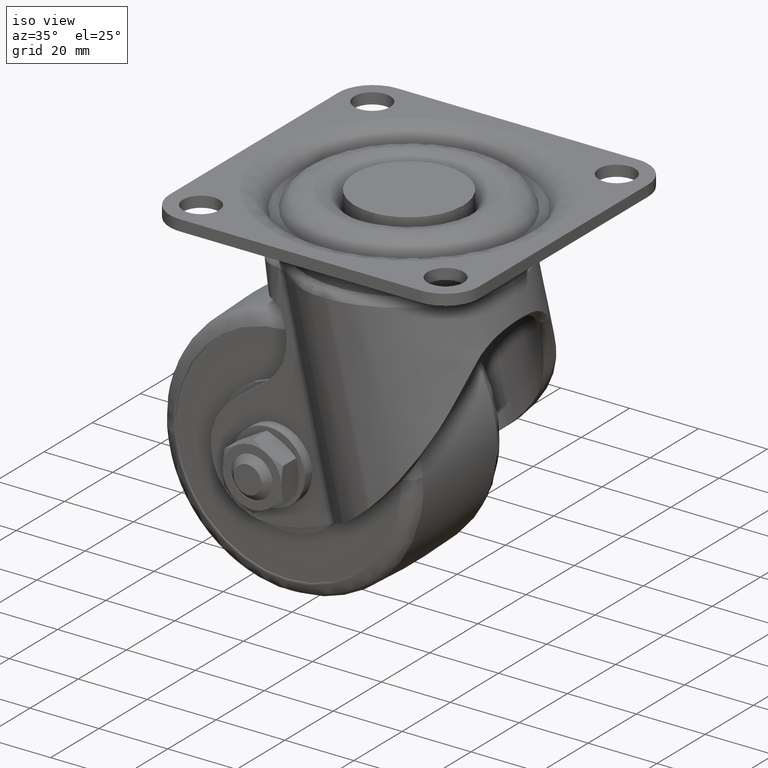
[diagram: clean part render]
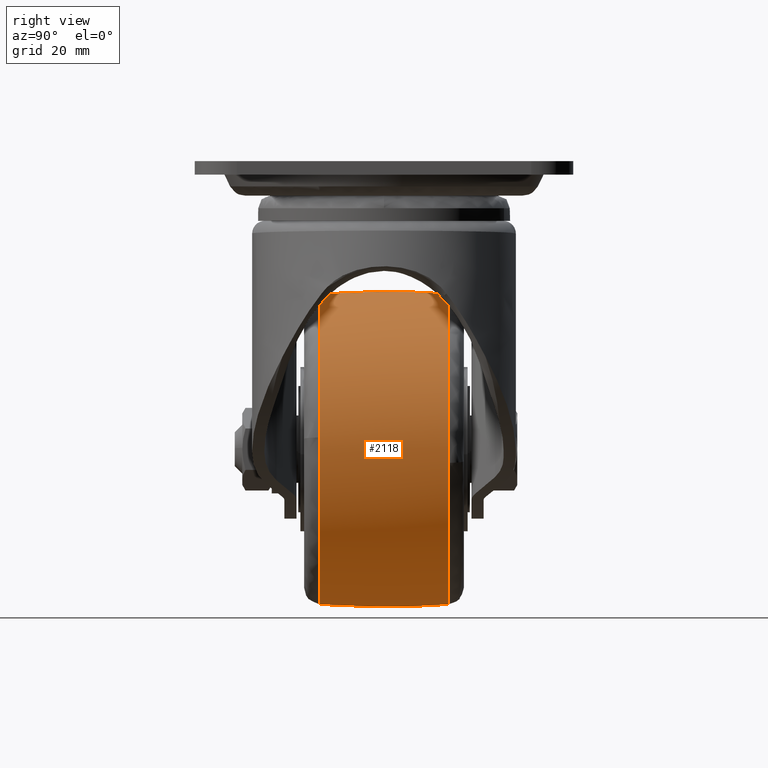
[diagram: tour spotlight — one face highlighted and labeled with its STEP entity id]
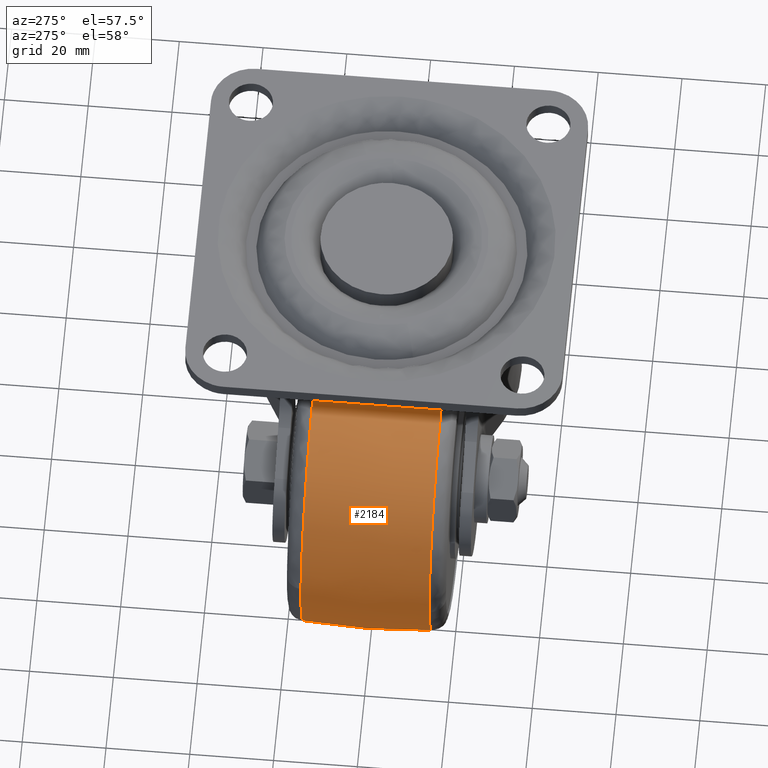
[diagram: tour spotlight — one face highlighted and labeled with its STEP entity id]
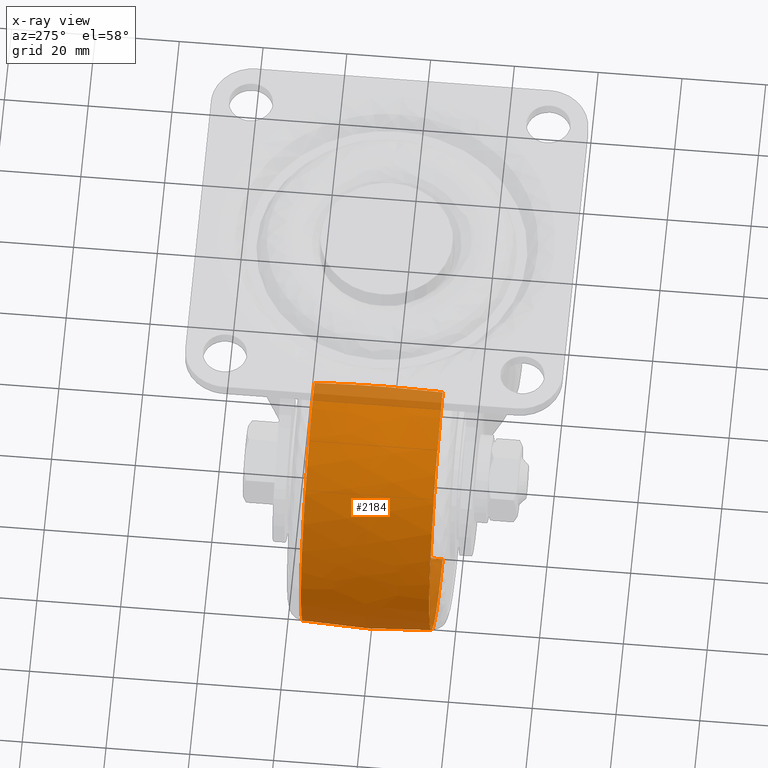
[diagram: x-ray of the same camera — body ghosted, this tour face saturated]
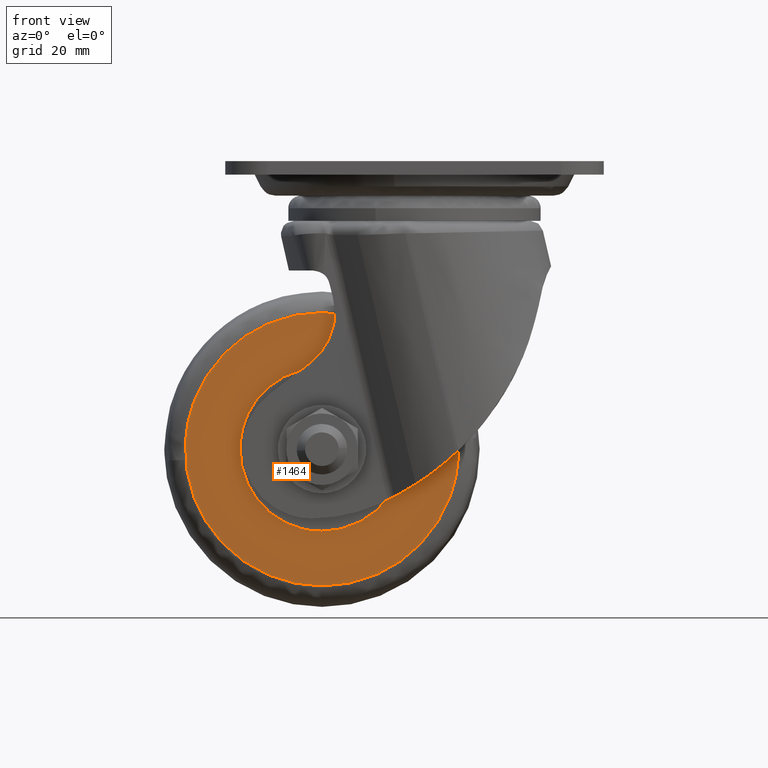
[diagram: tour spotlight — one face highlighted and labeled with its STEP entity id]
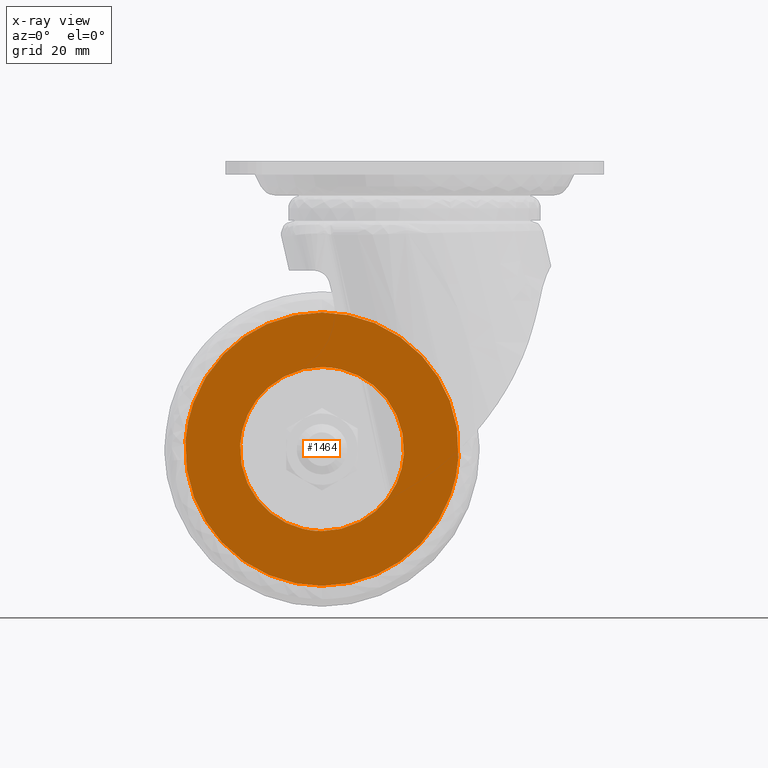
[diagram: x-ray of the same camera — body ghosted, this tour face saturated]
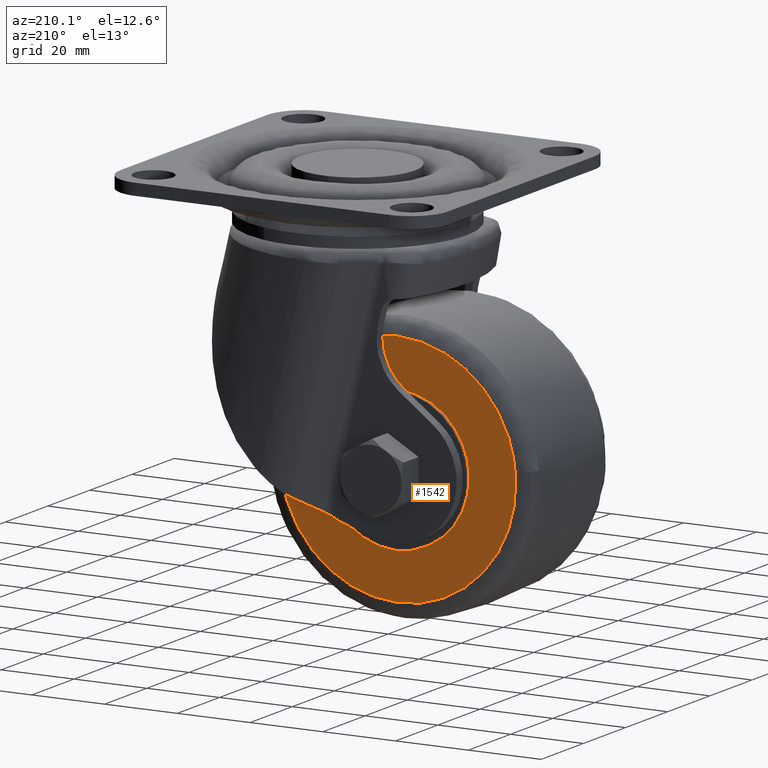
[diagram: tour spotlight — one face highlighted and labeled with its STEP entity id]
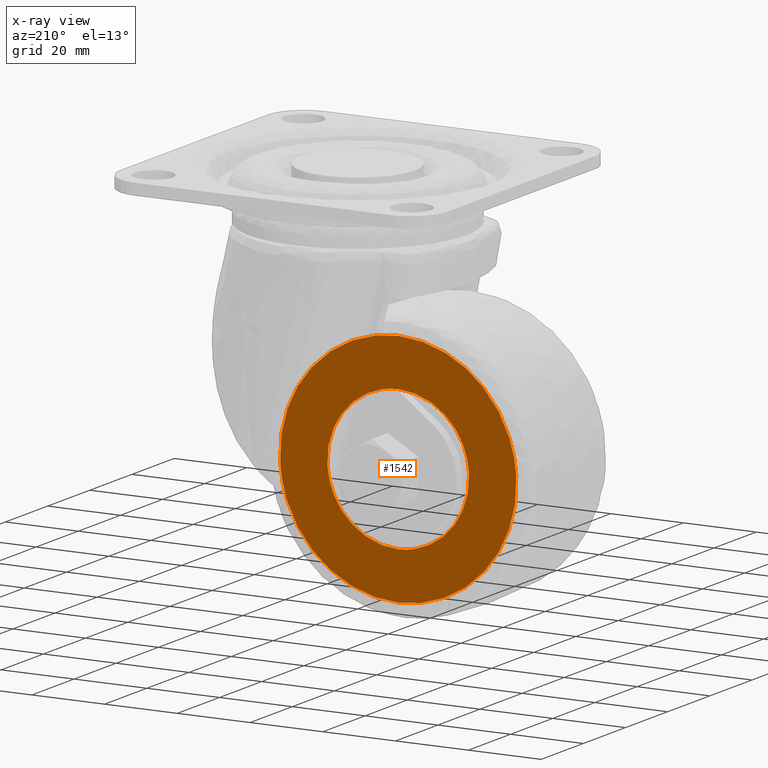
[diagram: x-ray of the same camera — body ghosted, this tour face saturated]
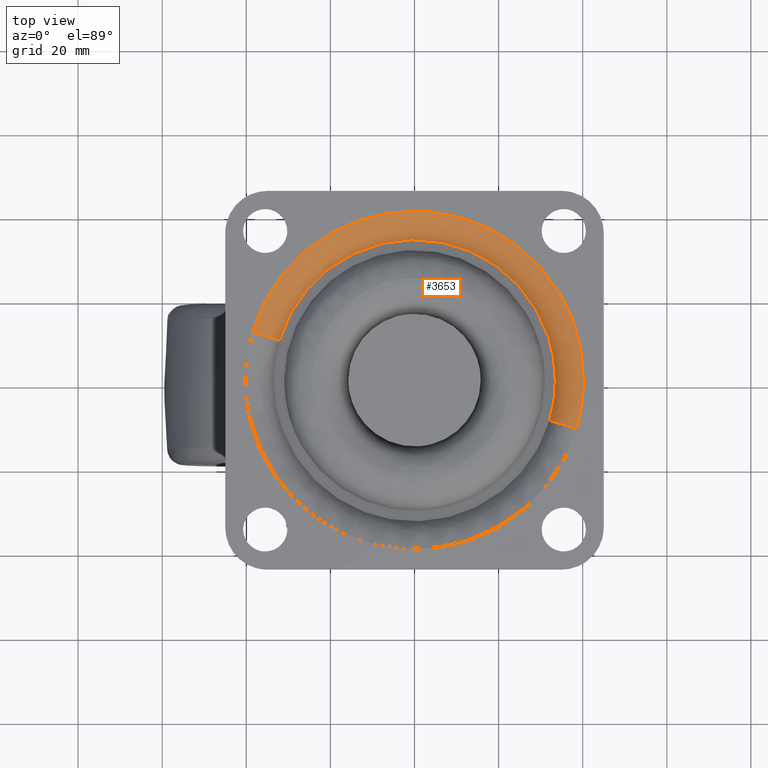
[diagram: tour spotlight — one face highlighted and labeled with its STEP entity id]
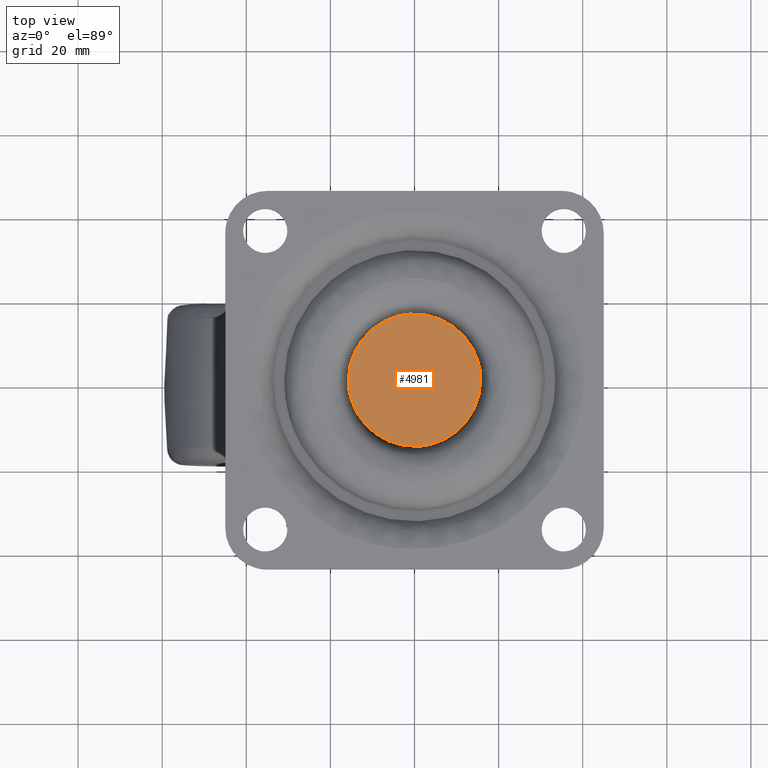
[diagram: tour spotlight — one face highlighted and labeled with its STEP entity id]
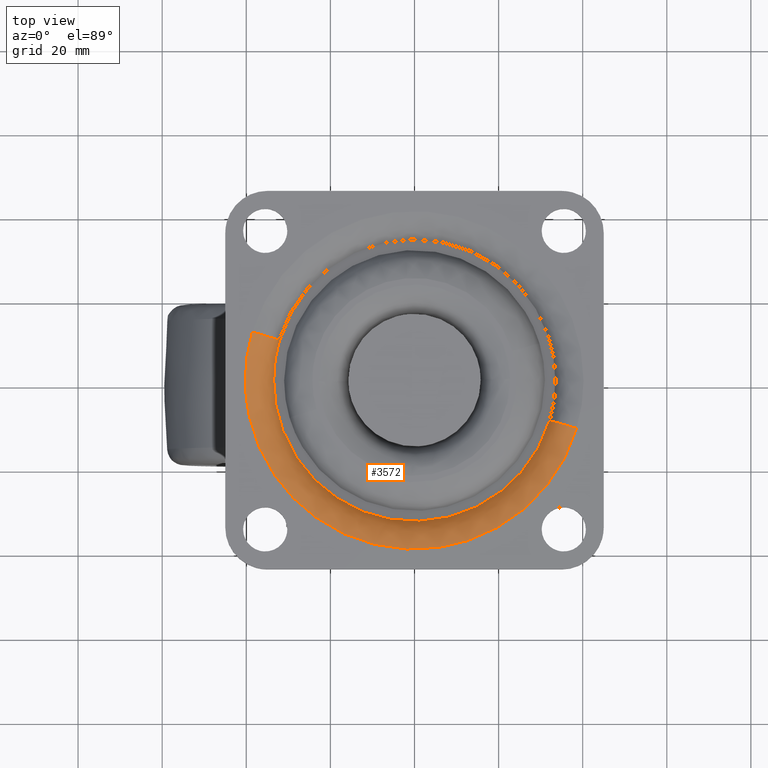
[diagram: tour spotlight — one face highlighted and labeled with its STEP entity id]
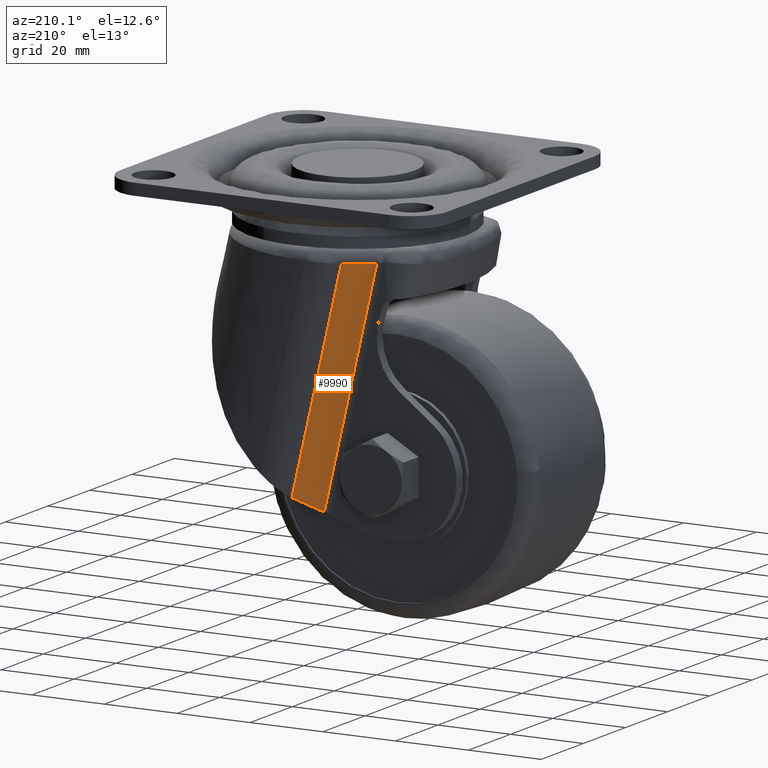
[diagram: tour spotlight — one face highlighted and labeled with its STEP entity id]
A machine part: a face-by-face anatomy tour. The part has 238 B-rep faces; the first image is the clean iso view, then the 8 largest visible faces are spotlighted one at a time (largest first), each with its STEP entity span.

Face 1 — right view, entity #2118. In plain terms, the highlighted face is a freeform B-spline surface patch.
Definition (entity closure, byte-faithful):
#1910=CARTESIAN_POINT('',(-22.0,-15.306123264225420,-105.413446363630000));
#1911=VERTEX_POINT('',#1910);
#1925=CARTESIAN_POINT('',(14.808571611944000,-15.306123262400311,-65.719428002000541));
#1926=VERTEX_POINT('',#1925);
#1927=CARTESIAN_POINT('',(-22.0,-15.306123264225420,-105.413446363630000));
#1928=CARTESIAN_POINT('',(14.913446411886328,-15.306123263381249,-105.413446364711670));
#1929=CARTESIAN_POINT('',(14.913446396445320,-15.306123262466789,-68.500000002247745));
#1930=CARTESIAN_POINT('',(14.913446395862923,-15.306123262432301,-67.107736221987309));
#1931=CARTESIAN_POINT('',(14.808571611944002,-15.306123262400314,-65.719428002000541));
#1939=(BOUNDED_CURVE()B_SPLINE_CURVE(2,(#1927,#1928,#1929,#1930,#1931),.UNSPECIFIED.,.F.,.U.)B_SPLINE_CURVE_WITH_KNOTS((3,2,3),(0.0,0.250000000000000,0.263129840759721),.UNSPECIFIED.)CURVE()GEOMETRIC_REPRESENTATION_ITEM()RATIONAL_B_SPLINE_CURVE((1.0,0.707106781186548,1.0,0.984617434709509,0.970850634480939))REPRESENTATION_ITEM(''));
#1940=EDGE_CURVE('',#1911,#1926,#1939,.T.);
#1991=CARTESIAN_POINT('',(-22.0,-15.306123264217179,-31.586553636369320));
#1992=VERTEX_POINT('',#1991);
#1993=CARTESIAN_POINT('',(14.808571611944002,-15.306123262400314,-65.719428002000541));
#1994=CARTESIAN_POINT('',(12.230125607035051,-15.306123263306839,-31.586553637535751));
#1995=CARTESIAN_POINT('',(-22.0,-15.306123264217179,-31.586553636369320));
#2003=(BOUNDED_CURVE()B_SPLINE_CURVE(2,(#1993,#1994,#1995),.UNSPECIFIED.,.F.,.U.)B_SPLINE_CURVE_WITH_KNOTS((3,3),(0.263129840759721,0.500000000000000),.UNSPECIFIED.)CURVE()GEOMETRIC_REPRESENTATION_ITEM()RATIONAL_B_SPLINE_CURVE((0.970850634480939,0.722489346477039,1.0))REPRESENTATION_ITEM(''));
#2004=EDGE_CURVE('',#1926,#1992,#2003,.T.);
#2025=CARTESIAN_POINT('',(-23.028545633244740,-16.830030157664975,-105.290617152168220));
#2026=CARTESIAN_POINT('',(-23.068280295610233,0.000003840997118,-106.711908248556010));
#2027=CARTESIAN_POINT('',(-23.028545615236464,16.830037785261080,-105.290616508019970));
#2028=CARTESIAN_POINT('',(-22.517267812753410,-16.830030157664975,-105.290617152168210));
#2029=CARTESIAN_POINT('',(-22.537250846298992,0.000003840997118,-106.711908248556010));
#2030=CARTESIAN_POINT('',(-22.517267803696821,16.830037785261080,-105.290616508019950));
#2031=CARTESIAN_POINT('',(14.790617152168210,-16.830030157664972,-105.290617152168210));
#2032=CARTESIAN_POINT('',(16.211908248556028,0.000003840997119,-106.711908248556010));
#2033=CARTESIAN_POINT('',(14.790616508019966,16.830037785261077,-105.290616508019970));
#2034=CARTESIAN_POINT('',(14.790617152168213,-16.830030157664979,-68.500000000000000));
#2035=CARTESIAN_POINT('',(16.211908248556025,0.000003840997118,-68.499999999999986));
#2036=CARTESIAN_POINT('',(14.790616508019969,16.830037785261073,-68.500000000000000));
#2037=CARTESIAN_POINT('',(14.790617152168217,-16.830030157664972,-31.709382847831787));
#2038=CARTESIAN_POINT('',(16.211908248556028,0.000003840997119,-30.288091751443968));
#2039=CARTESIAN_POINT('',(14.790616508019966,16.830037785261077,-31.709383491980038));
#2040=CARTESIAN_POINT('',(-22.517267812753399,-16.830030157664979,-31.709382847831794));
#2041=CARTESIAN_POINT('',(-22.537250846298981,0.000003840997118,-30.288091751443979));
#2042=CARTESIAN_POINT('',(-22.517267803696825,16.830037785261073,-31.709383491980045));
#2043=CARTESIAN_POINT('',(-23.028545633244740,-16.830030157664975,-31.709382847831790));
#2044=CARTESIAN_POINT('',(-23.068280295610233,0.000003840997118,-30.288091751443975));
#2045=CARTESIAN_POINT('',(-23.028545615236457,16.830037785261080,-31.709383491980038));
#2053=(BOUNDED_SURFACE()B_SPLINE_SURFACE(2,2,((#2025,#2028,#2031,#2034,#2037,#2040,#2043),(#2026,#2029,#2032,#2035,#2038,#2041,#2044),(#2027,#2030,#2033,#2036,#2039,#2042,#2045)),.UNSPECIFIED.,.F.,.F.,.U.)B_SPLINE_SURFACE_WITH_KNOTS((3,3),(3,1,2,1,3),(0.0,33.719868711314149),(0.0,1.242640687119285,63.374675043083478,125.506709399047690,126.749350086167000),.UNSPECIFIED.)GEOMETRIC_REPRESENTATION_ITEM()RATIONAL_B_SPLINE_SURFACE(((0.918496292972066,0.913178171921432,0.641953998339106,0.907860050870799,0.641953998339106,0.913178171921432,0.918496292972066),(0.915238464651036,0.909939206523972,0.639677042043702,0.904639948396907,0.639677042043702,0.909939206523972,0.915238464651036),(0.918496294453814,0.913178173394600,0.641953999374726,0.907860052335387,0.641953999374726,0.913178173394600,0.918496294453814)))REPRESENTATION_ITEM('')SURFACE());
#2054=CARTESIAN_POINT('',(-22.0,15.306126688645850,-105.413446100786100));
#2055=VERTEX_POINT('',#2054);
#2056=CARTESIAN_POINT('',(-22.0,-15.306123264225402,-105.413446363629970));
#2057=CARTESIAN_POINT('',(-22.000000000000007,0.000001722297611,-106.588279054270900));
#2058=CARTESIAN_POINT('',(-22.0,15.306126688645850,-105.413446100786090));
#2066=(BOUNDED_CURVE()B_SPLINE_CURVE(2,(#2056,#2057,#2058),.UNSPECIFIED.,.F.,.U.)B_SPLINE_CURVE_WITH_KNOTS((3,3),(0.440426803846777,0.559573209520666),.UNSPECIFIED.)CURVE()GEOMETRIC_REPRESENTATION_ITEM()RATIONAL_B_SPLINE_CURVE((0.907580862137466,0.904919137563906,0.907580862734722))REPRESENTATION_ITEM(''));
#2067=EDGE_CURVE('',#1911,#2055,#2066,.T.);
#2068=ORIENTED_EDGE('',*,*,#2067,.T.);
#2069=CARTESIAN_POINT('',(14.770724452030590,15.306126676629290,-71.742890423072211));
#2070=VERTEX_POINT('',#2069);
#2071=CARTESIAN_POINT('',(-22.0,15.306126688645850,-105.413446100786100));
#2072=CARTESIAN_POINT('',(11.801244706569882,15.306126682647827,-105.413446093734580));
#2073=CARTESIAN_POINT('',(14.770724452030590,15.306126676629290,-71.742890423072211));
#2081=(BOUNDED_CURVE()B_SPLINE_CURVE(2,(#2071,#2072,#2073),.UNSPECIFIED.,.F.,.U.)B_SPLINE_CURVE_WITH_KNOTS((3,3),(0.0,0.234718454724046),.UNSPECIFIED.)CURVE()GEOMETRIC_REPRESENTATION_ITEM()RATIONAL_B_SPLINE_CURVE((1.0,0.725010225123819,0.966381850438441))REPRESENTATION_ITEM(''));
#2082=EDGE_CURVE('',#2055,#2070,#2081,.T.);
#2083=ORIENTED_EDGE('',*,*,#2082,.T.);
#2084=CARTESIAN_POINT('',(-22.0,15.306126688600891,-31.586553899210440));
#2085=VERTEX_POINT('',#2084);
#2086=CARTESIAN_POINT('',(14.770724452030588,15.306126676629288,-71.742890423072211));
#2087=CARTESIAN_POINT('',(14.913446269514763,15.306126676870031,-70.124585846781827));
#2088=CARTESIAN_POINT('',(14.913446273033690,15.306126677133021,-68.499999986489769));
#2089=CARTESIAN_POINT('',(14.913446352989878,15.306126683108557,-31.586553892753443));
#2090=CARTESIAN_POINT('',(-22.0,15.306126688600891,-31.586553899210440));
#2098=(BOUNDED_CURVE()B_SPLINE_CURVE(2,(#2086,#2087,#2088,#2089,#2090),.UNSPECIFIED.,.F.,.U.)B_SPLINE_CURVE_WITH_KNOTS((3,2,3),(0.234718454724046,0.250000000000000,0.500000000000000),.UNSPECIFIED.)CURVE()GEOMETRIC_REPRESENTATION_ITEM()RATIONAL_B_SPLINE_CURVE((0.966381850438441,0.982096556062729,1.0,0.707106781186548,1.0))REPRESENTATION_ITEM(''));
#2099=EDGE_CURVE('',#2070,#2085,#2098,.T.);
#2100=ORIENTED_EDGE('',*,*,#2099,.T.);
#2101=CARTESIAN_POINT('',(-22.0,-15.306123264217183,-31.586553636369388));
#2102=CARTESIAN_POINT('',(-22.000000000000004,0.000001722279125,-30.411720945731155));
#2103=CARTESIAN_POINT('',(-22.0,15.306126688600871,-31.586553899210458));
#2111=(BOUNDED_CURVE()B_SPLINE_CURVE(2,(#2101,#2102,#2103),.UNSPECIFIED.,.F.,.U.)B_SPLINE_CURVE_WITH_KNOTS((3,3),(0.440426803846809,0.559573209520490),.UNSPECIFIED.)CURVE()GEOMETRIC_REPRESENTATION_ITEM()RATIONAL_B_SPLINE_CURVE((0.907580862137465,0.904919137563910,0.907580862734715))REPRESENTATION_ITEM(''));
#2112=EDGE_CURVE('',#1992,#2085,#2111,.T.);
#2113=ORIENTED_EDGE('',*,*,#2112,.F.);
#2114=ORIENTED_EDGE('',*,*,#2004,.F.);
#2115=ORIENTED_EDGE('',*,*,#1940,.F.);
#2116=EDGE_LOOP('',(#2068,#2083,#2100,#2113,#2114,#2115));
#2117=FACE_OUTER_BOUND('',#2116,.T.);
#2118=ADVANCED_FACE('',(#2117),#2053,.T.);

Face 2 — auxiliary view, entity #2184. An x-ray twin of the same camera follows (body ghosted, this face saturated) — the face is partly hidden behind the body. In plain terms, the highlighted face is a freeform B-spline surface patch.
Definition (entity closure, byte-faithful):
#1895=CARTESIAN_POINT('',(-58.808571611943961,-15.306123262400931,-71.280571997999459));
#1896=VERTEX_POINT('',#1895);
#1910=CARTESIAN_POINT('',(-22.0,-15.306123264225420,-105.413446363630000));
#1911=VERTEX_POINT('',#1910);
#1912=CARTESIAN_POINT('',(-58.808571611943968,-15.306123262400927,-71.280571997999459));
#1913=CARTESIAN_POINT('',(-56.230125607034466,-15.306123263315085,-105.413446362463620));
#1914=CARTESIAN_POINT('',(-22.0,-15.306123264225420,-105.413446363630000));
#1922=(BOUNDED_CURVE()B_SPLINE_CURVE(2,(#1912,#1913,#1914),.UNSPECIFIED.,.F.,.U.)B_SPLINE_CURVE_WITH_KNOTS((3,3),(0.763129840759724,1.0),.UNSPECIFIED.)CURVE()GEOMETRIC_REPRESENTATION_ITEM()RATIONAL_B_SPLINE_CURVE((0.970850634480932,0.722489346477042,1.0))REPRESENTATION_ITEM(''));
#1923=EDGE_CURVE('',#1896,#1911,#1922,.T.);
#1991=CARTESIAN_POINT('',(-22.0,-15.306123264217179,-31.586553636369320));
#1992=VERTEX_POINT('',#1991);
#2006=CARTESIAN_POINT('',(-22.0,-15.306123264217179,-31.586553636369320));
#2007=CARTESIAN_POINT('',(-58.913446411886341,-15.306123263373019,-31.586553635287672));
#2008=CARTESIAN_POINT('',(-58.913446396445323,-15.306123262466789,-68.499999997751615));
#2009=CARTESIAN_POINT('',(-58.913446395862934,-15.306123262432619,-69.892263778012364));
#2010=CARTESIAN_POINT('',(-58.808571611943961,-15.306123262400934,-71.280571997999459));
#2018=(BOUNDED_CURVE()B_SPLINE_CURVE(2,(#2006,#2007,#2008,#2009,#2010),.UNSPECIFIED.,.F.,.U.)B_SPLINE_CURVE_WITH_KNOTS((3,2,3),(0.500000000000000,0.750000000000000,0.763129840759724),.UNSPECIFIED.)CURVE()GEOMETRIC_REPRESENTATION_ITEM()RATIONAL_B_SPLINE_CURVE((1.0,0.707106781186548,1.0,0.984617434709505,0.970850634480933))REPRESENTATION_ITEM(''));
#2019=EDGE_CURVE('',#1992,#1896,#2018,.T.);
#2054=CARTESIAN_POINT('',(-22.0,15.306126688645850,-105.413446100786100));
#2055=VERTEX_POINT('',#2054);
#2056=CARTESIAN_POINT('',(-22.0,-15.306123264225402,-105.413446363629970));
#2057=CARTESIAN_POINT('',(-22.000000000000007,0.000001722297611,-106.588279054270900));
#2058=CARTESIAN_POINT('',(-22.0,15.306126688645850,-105.413446100786090));
#2066=(BOUNDED_CURVE()B_SPLINE_CURVE(2,(#2056,#2057,#2058),.UNSPECIFIED.,.F.,.U.)B_SPLINE_CURVE_WITH_KNOTS((3,3),(0.440426803846777,0.559573209520666),.UNSPECIFIED.)CURVE()GEOMETRIC_REPRESENTATION_ITEM()RATIONAL_B_SPLINE_CURVE((0.907580862137466,0.904919137563906,0.907580862734722))REPRESENTATION_ITEM(''));
#2067=EDGE_CURVE('',#1911,#2055,#2066,.T.);
#2084=CARTESIAN_POINT('',(-22.0,15.306126688600891,-31.586553899210440));
#2085=VERTEX_POINT('',#2084);
#2101=CARTESIAN_POINT('',(-22.0,-15.306123264217183,-31.586553636369388));
#2102=CARTESIAN_POINT('',(-22.000000000000004,0.000001722279125,-30.411720945731155));
#2103=CARTESIAN_POINT('',(-22.0,15.306126688600871,-31.586553899210458));
#2111=(BOUNDED_CURVE()B_SPLINE_CURVE(2,(#2101,#2102,#2103),.UNSPECIFIED.,.F.,.U.)B_SPLINE_CURVE_WITH_KNOTS((3,3),(0.440426803846809,0.559573209520490),.UNSPECIFIED.)CURVE()GEOMETRIC_REPRESENTATION_ITEM()RATIONAL_B_SPLINE_CURVE((0.907580862137465,0.904919137563910,0.907580862734715))REPRESENTATION_ITEM(''));
#2112=EDGE_CURVE('',#1992,#2085,#2111,.T.);
#2119=CARTESIAN_POINT('',(-20.971454366755253,-16.830030157664975,-31.709382847831790));
#2120=CARTESIAN_POINT('',(-20.931719704389767,0.000003840997118,-30.288091751443975));
#2121=CARTESIAN_POINT('',(-20.971454384763540,16.830037785261080,-31.709383491980038));
#2122=CARTESIAN_POINT('',(-21.482732187246594,-16.830030157664975,-31.709382847831790));
#2123=CARTESIAN_POINT('',(-21.462749153701012,0.000003840997118,-30.288091751443979));
#2124=CARTESIAN_POINT('',(-21.482732196303168,16.830037785261080,-31.709383491980041));
#2125=CARTESIAN_POINT('',(-58.790617152168210,-16.830030157664972,-31.709382847831776));
#2126=CARTESIAN_POINT('',(-60.211908248556014,0.000003840997119,-30.288091751443954));
#2127=CARTESIAN_POINT('',(-58.790616508019959,16.830037785261077,-31.709383491980024));
#2128=CARTESIAN_POINT('',(-58.790617152168217,-16.830030157664979,-68.500000000000000));
#2129=CARTESIAN_POINT('',(-60.211908248556028,0.000003840997118,-68.499999999999986));
#2130=CARTESIAN_POINT('',(-58.790616508019966,16.830037785261073,-68.500000000000000));
#2131=CARTESIAN_POINT('',(-58.790617152168231,-16.830030157664972,-105.290617152168210));
#2132=CARTESIAN_POINT('',(-60.211908248556028,0.000003840997119,-106.711908248556010));
#2133=CARTESIAN_POINT('',(-58.790616508019959,16.830037785261077,-105.290616508019970));
#2134=CARTESIAN_POINT('',(-21.482732187246594,-16.830030157664979,-105.290617152168220));
#2135=CARTESIAN_POINT('',(-21.462749153701012,0.000003840997118,-106.711908248556010));
#2136=CARTESIAN_POINT('',(-21.482732196303171,16.830037785261073,-105.290616508019970));
#2137=CARTESIAN_POINT('',(-20.971454366755253,-16.830030157664975,-105.290617152168210));
#2138=CARTESIAN_POINT('',(-20.931719704389767,0.000003840997118,-106.711908248556010));
#2139=CARTESIAN_POINT('',(-20.971454384763540,16.830037785261080,-105.290616508019950));
#2147=(BOUNDED_SURFACE()B_SPLINE_SURFACE(2,2,((#2119,#2122,#2125,#2128,#2131,#2134,#2137),(#2120,#2123,#2126,#2129,#2132,#2135,#2138),(#2121,#2124,#2127,#2130,#2133,#2136,#2139)),.UNSPECIFIED.,.F.,.F.,.U.)B_SPLINE_SURFACE_WITH_KNOTS((3,3),(3,1,2,1,3),(0.0,33.719868711314149),(0.0,1.242640687119285,63.374675043083457,125.506709399047590,126.749350086166900),.UNSPECIFIED.)GEOMETRIC_REPRESENTATION_ITEM()RATIONAL_B_SPLINE_SURFACE(((0.918496292972066,0.913178171921432,0.641953998339106,0.907860050870799,0.641953998339106,0.913178171921432,0.918496292972066),(0.915238464651036,0.909939206523972,0.639677042043702,0.904639948396907,0.639677042043702,0.909939206523972,0.915238464651036),(0.918496294453814,0.913178173394600,0.641953999374726,0.907860052335387,0.641953999374726,0.913178173394600,0.918496294453814)))REPRESENTATION_ITEM('')SURFACE());
#2148=ORIENTED_EDGE('',*,*,#2067,.F.);
#2149=ORIENTED_EDGE('',*,*,#1923,.F.);
#2150=ORIENTED_EDGE('',*,*,#2019,.F.);
#2151=ORIENTED_EDGE('',*,*,#2112,.T.);
#2152=CARTESIAN_POINT('',(-58.770724452030890,15.306126676625340,-65.257109576927775));
#2153=VERTEX_POINT('',#2152);
#2154=CARTESIAN_POINT('',(-22.0,15.306126688600891,-31.586553899210440));
#2155=CARTESIAN_POINT('',(-55.801244706573080,15.306126682602862,-31.586553906261955));
#2156=CARTESIAN_POINT('',(-58.770724452030898,15.306126676625340,-65.257109576927775));
#2164=(BOUNDED_CURVE()B_SPLINE_CURVE(2,(#2154,#2155,#2156),.UNSPECIFIED.,.F.,.U.)B_SPLINE_CURVE_WITH_KNOTS((3,3),(0.500000000000000,0.734718454724062),.UNSPECIFIED.)CURVE()GEOMETRIC_REPRESENTATION_ITEM()RATIONAL_B_SPLINE_CURVE((1.0,0.725010225123800,0.966381850438474))REPRESENTATION_ITEM(''));
#2165=EDGE_CURVE('',#2085,#2153,#2164,.T.);
#2166=ORIENTED_EDGE('',*,*,#2165,.T.);
#2167=CARTESIAN_POINT('',(-58.770724452030898,15.306126676625340,-65.257109576927775));
#2168=CARTESIAN_POINT('',(-58.913446269514765,15.306126676868050,-66.875414153216440));
#2169=CARTESIAN_POINT('',(-58.913446273033692,15.306126677133021,-68.500000013506764));
#2170=CARTESIAN_POINT('',(-58.913446352989894,15.306126683153529,-105.413446107243080));
#2171=CARTESIAN_POINT('',(-22.0,15.306126688645850,-105.413446100786100));
#2179=(BOUNDED_CURVE()B_SPLINE_CURVE(2,(#2167,#2168,#2169,#2170,#2171),.UNSPECIFIED.,.F.,.U.)B_SPLINE_CURVE_WITH_KNOTS((3,2,3),(0.734718454724062,0.750000000000000,1.0),.UNSPECIFIED.)CURVE()GEOMETRIC_REPRESENTATION_ITEM()RATIONAL_B_SPLINE_CURVE((0.966381850438474,0.982096556062748,1.0,0.707106781186548,1.0))REPRESENTATION_ITEM(''));
#2180=EDGE_CURVE('',#2153,#2055,#2179,.T.);
#2181=ORIENTED_EDGE('',*,*,#2180,.T.);
#2182=EDGE_LOOP('',(#2148,#2149,#2150,#2151,#2166,#2181));
#2183=FACE_OUTER_BOUND('',#2182,.T.);
#2184=ADVANCED_FACE('',(#2183),#2147,.T.);

Face 3 — front view, entity #1464. An x-ray twin of the same camera follows (body ghosted, this face saturated) — the face is partly hidden behind the body. In plain terms, the highlighted face is a freeform B-spline surface patch.
Definition (entity closure, byte-faithful):
#1284=CARTESIAN_POINT('',(-2.536369696328826,-18.699999999999999,-69.690418162330275));
#1285=VERTEX_POINT('',#1284);
#1291=CARTESIAN_POINT('',(-22.0,-18.699999999999999,-49.0));
#1292=VERTEX_POINT('',#1291);
#1293=CARTESIAN_POINT('',(-2.536369696328823,-18.700000000000003,-69.690418162330275));
#1294=CARTESIAN_POINT('',(-2.500000000020367,-18.699999999999999,-69.095764665265705));
#1295=CARTESIAN_POINT('',(-2.500000000020052,-18.699999999999999,-68.499999999998764));
#1296=CARTESIAN_POINT('',(-2.500000000009720,-18.699999999999999,-48.999999999999410));
#1297=CARTESIAN_POINT('',(-22.0,-18.699999999999999,-49.0));
#1305=(BOUNDED_CURVE()B_SPLINE_CURVE(2,(#1293,#1294,#1295,#1296,#1297),.UNSPECIFIED.,.F.,.U.)B_SPLINE_CURVE_WITH_KNOTS((3,2,3),(0.239333213643509,0.250000000000000,0.500000000000000),.UNSPECIFIED.)CURVE()GEOMETRIC_REPRESENTATION_ITEM()RATIONAL_B_SPLINE_CURVE((0.976072580475152,0.987503082438608,1.0,0.707106781186548,1.0))REPRESENTATION_ITEM(''));
#1306=EDGE_CURVE('',#1285,#1292,#1305,.T.);
#1308=CARTESIAN_POINT('',(-41.463630303671167,-18.699999999999999,-67.309581837669725));
#1309=VERTEX_POINT('',#1308);
#1310=CARTESIAN_POINT('',(-22.0,-18.699999999999999,-49.0));
#1311=CARTESIAN_POINT('',(-40.343795081568693,-18.700000000000010,-49.000000000000632));
#1312=CARTESIAN_POINT('',(-41.463630303671174,-18.700000000000006,-67.309581837669725));
#1320=(BOUNDED_CURVE()B_SPLINE_CURVE(2,(#1310,#1311,#1312),.UNSPECIFIED.,.F.,.U.)B_SPLINE_CURVE_WITH_KNOTS((3,3),(0.500000000000000,0.739333213643509),.UNSPECIFIED.)CURVE()GEOMETRIC_REPRESENTATION_ITEM()RATIONAL_B_SPLINE_CURVE((1.0,0.719603698747940,0.976072580475152))REPRESENTATION_ITEM(''));
#1321=EDGE_CURVE('',#1292,#1309,#1320,.T.);
#1353=CARTESIAN_POINT('',(-22.0,-18.699999999999999,-88.000000000000014));
#1354=VERTEX_POINT('',#1353);
#1355=CARTESIAN_POINT('',(-41.463630303671174,-18.700000000000006,-67.309581837669725));
#1356=CARTESIAN_POINT('',(-41.499999999979643,-18.700000000000003,-67.904235334734281));
#1357=CARTESIAN_POINT('',(-41.499999999979948,-18.699999999999999,-68.500000000001222));
#1358=CARTESIAN_POINT('',(-41.499999999990280,-18.699999999999999,-88.000000000000611));
#1359=CARTESIAN_POINT('',(-22.0,-18.699999999999999,-88.000000000000014));
#1367=(BOUNDED_CURVE()B_SPLINE_CURVE(2,(#1355,#1356,#1357,#1358,#1359),.UNSPECIFIED.,.F.,.U.)B_SPLINE_CURVE_WITH_KNOTS((3,2,3),(0.739333213643509,0.750000000000000,1.0),.UNSPECIFIED.)CURVE()GEOMETRIC_REPRESENTATION_ITEM()RATIONAL_B_SPLINE_CURVE((0.976072580475152,0.987503082438608,1.0,0.707106781186548,1.0))REPRESENTATION_ITEM(''));
#1368=EDGE_CURVE('',#1309,#1354,#1367,.T.);
#1370=CARTESIAN_POINT('',(-22.0,-18.699999999999999,-88.000000000000014));
#1371=CARTESIAN_POINT('',(-3.656204918431297,-18.699999999999999,-87.999999999999389));
#1372=CARTESIAN_POINT('',(-2.536369696328823,-18.700000000000003,-69.690418162330275));
#1380=(BOUNDED_CURVE()B_SPLINE_CURVE(2,(#1370,#1371,#1372),.UNSPECIFIED.,.F.,.U.)B_SPLINE_CURVE_WITH_KNOTS((3,3),(0.0,0.239333213643509),.UNSPECIFIED.)CURVE()GEOMETRIC_REPRESENTATION_ITEM()RATIONAL_B_SPLINE_CURVE((1.0,0.719603698747940,0.976072580475152))REPRESENTATION_ITEM(''));
#1381=EDGE_CURVE('',#1354,#1285,#1380,.T.);
#1387=CARTESIAN_POINT('',(-57.745950087548707,-18.699999999999999,-104.246749874017400));
#1388=CARTESIAN_POINT('',(-57.745950087548707,-18.699999999999999,-32.753248382546758));
#1389=CARTESIAN_POINT('',(13.745948925258141,-18.699999999999999,-104.246749874017400));
#1390=CARTESIAN_POINT('',(13.745948925258141,-18.699999999999999,-32.753248382546758));
#1391=B_SPLINE_SURFACE_WITH_KNOTS('',1,1,((#1387,#1389),(#1388,#1390)),.UNSPECIFIED.,.F.,.F.,.U.,(2,2),(2,2),(0.0,71.493501491470639),(0.0,71.491899012806854),.UNSPECIFIED.);
#1392=CARTESIAN_POINT('',(-22.0,-18.699999999999999,-101.0));
#1393=VERTEX_POINT('',#1392);
#1394=CARTESIAN_POINT('',(10.439382966510610,-18.700000000002429,-70.484044543594905));
#1395=VERTEX_POINT('',#1394);
#1396=CARTESIAN_POINT('',(-22.0,-18.699999999999999,-101.0));
#1397=CARTESIAN_POINT('',(8.572978325642538,-18.700000000001207,-100.999999999999460));
#1398=CARTESIAN_POINT('',(10.439382966510603,-18.700000000002426,-70.484044543594905));
#1406=(BOUNDED_CURVE()B_SPLINE_CURVE(2,(#1396,#1397,#1398),.UNSPECIFIED.,.F.,.U.)B_SPLINE_CURVE_WITH_KNOTS((3,3),(0.0,0.239333137724404),.UNSPECIFIED.)CURVE()GEOMETRIC_REPRESENTATION_ITEM()RATIONAL_B_SPLINE_CURVE((1.0,0.719603787692704,0.976072417765754))REPRESENTATION_ITEM(''));
#1407=EDGE_CURVE('',#1393,#1395,#1406,.T.);
#1408=ORIENTED_EDGE('',*,*,#1407,.T.);
#1409=CARTESIAN_POINT('',(-22.0,-18.699999999999999,-36.000000000000007));
#1410=VERTEX_POINT('',#1409);
#1411=CARTESIAN_POINT('',(10.439382966510603,-18.700000000002426,-70.484044543594905));
#1412=CARTESIAN_POINT('',(10.499999999983460,-18.700000000002401,-69.492948265308243));
#1413=CARTESIAN_POINT('',(10.499999999983711,-18.700000000002358,-68.499999999998991));
#1414=CARTESIAN_POINT('',(10.499999999992099,-18.700000000001147,-35.999999999999517));
#1415=CARTESIAN_POINT('',(-22.0,-18.699999999999999,-36.000000000000007));
#1423=(BOUNDED_CURVE()B_SPLINE_CURVE(2,(#1411,#1412,#1413,#1414,#1415),.UNSPECIFIED.,.F.,.U.)B_SPLINE_CURVE_WITH_KNOTS((3,2,3),(0.239333137724404,0.250000000000000,0.500000000000000),.UNSPECIFIED.)CURVE()GEOMETRIC_REPRESENTATION_ITEM()RATIONAL_B_SPLINE_CURVE((0.976072417765754,0.987502993493843,1.0,0.707106781186547,1.0))REPRESENTATION_ITEM(''));
#1424=EDGE_CURVE('',#1395,#1410,#1423,.T.);
#1425=ORIENTED_EDGE('',*,*,#1424,.T.);
#1426=CARTESIAN_POINT('',(-54.439382966510607,-18.700000000002429,-66.515955456405095));
#1427=VERTEX_POINT('',#1426);
#1428=CARTESIAN_POINT('',(-22.0,-18.699999999999999,-36.000000000000007));
#1429=CARTESIAN_POINT('',(-52.572978325642566,-18.700000000001211,-36.000000000000497));
#1430=CARTESIAN_POINT('',(-54.439382966510607,-18.700000000002433,-66.515955456405081));
#1438=(BOUNDED_CURVE()B_SPLINE_CURVE(2,(#1428,#1429,#1430),.UNSPECIFIED.,.F.,.U.)B_SPLINE_CURVE_WITH_KNOTS((3,3),(0.500000000000000,0.739333137724404),.UNSPECIFIED.)CURVE()GEOMETRIC_REPRESENTATION_ITEM()RATIONAL_B_SPLINE_CURVE((1.0,0.719603787692704,0.976072417765754))REPRESENTATION_ITEM(''));
#1439=EDGE_CURVE('',#1410,#1427,#1438,.T.);
#1440=ORIENTED_EDGE('',*,*,#1439,.T.);
#1441=CARTESIAN_POINT('',(-54.439382966510607,-18.700000000002433,-66.515955456405081));
#1442=CARTESIAN_POINT('',(-54.499999999983459,-18.700000000002401,-67.507051734691728));
#1443=CARTESIAN_POINT('',(-54.499999999983707,-18.700000000002358,-68.500000000000966));
#1444=CARTESIAN_POINT('',(-54.499999999992092,-18.700000000001147,-101.000000000000470));
#1445=CARTESIAN_POINT('',(-22.0,-18.699999999999999,-101.0));
#1453=(BOUNDED_CURVE()B_SPLINE_CURVE(2,(#1441,#1442,#1443,#1444,#1445),.UNSPECIFIED.,.F.,.U.)B_SPLINE_CURVE_WITH_KNOTS((3,2,3),(0.739333137724404,0.750000000000000,1.0),.UNSPECIFIED.)CURVE()GEOMETRIC_REPRESENTATION_ITEM()RATIONAL_B_SPLINE_CURVE((0.976072417765754,0.987502993493843,1.0,0.707106781186547,1.0))REPRESENTATION_ITEM(''));
#1454=EDGE_CURVE('',#1427,#1393,#1453,.T.);
#1455=ORIENTED_EDGE('',*,*,#1454,.T.);
#1456=EDGE_LOOP('',(#1408,#1425,#1440,#1455));
#1457=FACE_OUTER_BOUND('',#1456,.T.);
#1458=ORIENTED_EDGE('',*,*,#1321,.F.);
#1459=ORIENTED_EDGE('',*,*,#1306,.F.);
#1460=ORIENTED_EDGE('',*,*,#1381,.F.);
#1461=ORIENTED_EDGE('',*,*,#1368,.F.);
#1462=EDGE_LOOP('',(#1458,#1459,#1460,#1461));
#1463=FACE_BOUND('',#1462,.T.);
#1464=ADVANCED_FACE('',(#1457,#1463),#1391,.F.);

Face 4 — auxiliary view, entity #1542. An x-ray twin of the same camera follows (body ghosted, this face saturated) — the face is partly hidden behind the body. In plain terms, the highlighted face is a freeform B-spline surface patch.
Definition (entity closure, byte-faithful):
#1161=CARTESIAN_POINT('',(-2.536369674674880,18.700000000002738,-69.690417808274361));
#1162=VERTEX_POINT('',#1161);
#1163=CARTESIAN_POINT('',(-22.0,18.699999999999999,-49.0));
#1164=VERTEX_POINT('',#1163);
#1165=CARTESIAN_POINT('',(-2.536369674674881,18.700000000002738,-69.690417808274361));
#1166=CARTESIAN_POINT('',(-2.500000000020876,18.700000000002692,-69.095764487741405));
#1167=CARTESIAN_POINT('',(-2.500000000020549,18.700000000002660,-68.499999999998749));
#1168=CARTESIAN_POINT('',(-2.500000000009962,18.700000000001289,-48.999999999999389));
#1169=CARTESIAN_POINT('',(-22.0,18.699999999999999,-49.0));
#1177=(BOUNDED_CURVE()B_SPLINE_CURVE(2,(#1165,#1166,#1167,#1168,#1169),.UNSPECIFIED.,.F.,.U.)B_SPLINE_CURVE_WITH_KNOTS((3,2,3),(0.239333216782247,0.250000000000000,0.500000000000000),.UNSPECIFIED.)CURVE()GEOMETRIC_REPRESENTATION_ITEM()RATIONAL_B_SPLINE_CURVE((0.976072587202081,0.987503086115868,1.0,0.707106781186548,1.0))REPRESENTATION_ITEM(''));
#1178=EDGE_CURVE('',#1162,#1164,#1177,.T.);
#1187=CARTESIAN_POINT('',(-41.463630325325120,18.700000000002738,-67.309582191725653));
#1188=VERTEX_POINT('',#1187);
#1194=CARTESIAN_POINT('',(-22.0,18.699999999999999,-49.0));
#1195=CARTESIAN_POINT('',(-40.343795415877338,18.700000000001364,-49.000000000000647));
#1196=CARTESIAN_POINT('',(-41.463630325325113,18.700000000002738,-67.309582191725653));
#1204=(BOUNDED_CURVE()B_SPLINE_CURVE(2,(#1194,#1195,#1196),.UNSPECIFIED.,.F.,.U.)B_SPLINE_CURVE_WITH_KNOTS((3,3),(0.500000000000000,0.739333216782247),.UNSPECIFIED.)CURVE()GEOMETRIC_REPRESENTATION_ITEM()RATIONAL_B_SPLINE_CURVE((1.0,0.719603695070679,0.976072587202081))REPRESENTATION_ITEM(''));
#1205=EDGE_CURVE('',#1164,#1188,#1204,.T.);
#1228=CARTESIAN_POINT('',(-22.0,18.699999999999999,-88.000000000000014));
#1229=VERTEX_POINT('',#1228);
#1230=CARTESIAN_POINT('',(-22.0,18.699999999999999,-88.000000000000014));
#1231=CARTESIAN_POINT('',(-3.656204584122659,18.700000000001364,-87.999999999999389));
#1232=CARTESIAN_POINT('',(-2.536369674674881,18.700000000002738,-69.690417808274361));
#1240=(BOUNDED_CURVE()B_SPLINE_CURVE(2,(#1230,#1231,#1232),.UNSPECIFIED.,.F.,.U.)B_SPLINE_CURVE_WITH_KNOTS((3,3),(0.0,0.239333216782247),.UNSPECIFIED.)CURVE()GEOMETRIC_REPRESENTATION_ITEM()RATIONAL_B_SPLINE_CURVE((1.0,0.719603695070679,0.976072587202081))REPRESENTATION_ITEM(''));
#1241=EDGE_CURVE('',#1229,#1162,#1240,.T.);
#1243=CARTESIAN_POINT('',(-41.463630325325113,18.700000000002738,-67.309582191725653));
#1244=CARTESIAN_POINT('',(-41.499999999979124,18.700000000002692,-67.904235512258609));
#1245=CARTESIAN_POINT('',(-41.499999999979451,18.700000000002660,-68.500000000001265));
#1246=CARTESIAN_POINT('',(-41.499999999990038,18.700000000001289,-88.000000000000625));
#1247=CARTESIAN_POINT('',(-22.0,18.699999999999999,-88.000000000000014));
#1255=(BOUNDED_CURVE()B_SPLINE_CURVE(2,(#1243,#1244,#1245,#1246,#1247),.UNSPECIFIED.,.F.,.U.)B_SPLINE_CURVE_WITH_KNOTS((3,2,3),(0.739333216782247,0.750000000000000,1.0),.UNSPECIFIED.)CURVE()GEOMETRIC_REPRESENTATION_ITEM()RATIONAL_B_SPLINE_CURVE((0.976072587202081,0.987503086115868,1.0,0.707106781186548,1.0))REPRESENTATION_ITEM(''));
#1256=EDGE_CURVE('',#1188,#1229,#1255,.T.);
#1465=CARTESIAN_POINT('',(-57.745950087548721,18.699999999999999,-32.753250125982618));
#1466=CARTESIAN_POINT('',(-57.745950087548721,18.699999999999999,-104.246751617453200));
#1467=CARTESIAN_POINT('',(13.745948925258149,18.699999999999999,-32.753250125982618));
#1468=CARTESIAN_POINT('',(13.745948925258149,18.699999999999999,-104.246751617453300));
#1469=B_SPLINE_SURFACE_WITH_KNOTS('',1,1,((#1465,#1467),(#1466,#1468)),.UNSPECIFIED.,.F.,.F.,.U.,(2,2),(2,2),(0.0,71.493501491470639),(0.0,71.491899012806869),.UNSPECIFIED.);
#1470=CARTESIAN_POINT('',(-54.439382967103128,18.700000000002429,-66.515955466093004));
#1471=VERTEX_POINT('',#1470);
#1472=CARTESIAN_POINT('',(-22.0,18.699999999999999,-101.0));
#1473=VERTEX_POINT('',#1472);
#1474=CARTESIAN_POINT('',(-54.439382967103136,18.700000000002426,-66.515955466093004));
#1475=CARTESIAN_POINT('',(-54.499999999983459,18.700000000002397,-67.507051739549283));
#1476=CARTESIAN_POINT('',(-54.499999999983707,18.700000000002358,-68.500000000000995));
#1477=CARTESIAN_POINT('',(-54.499999999992092,18.700000000001147,-101.000000000000480));
#1478=CARTESIAN_POINT('',(-22.0,18.699999999999999,-101.0));
#1486=(BOUNDED_CURVE()B_SPLINE_CURVE(2,(#1474,#1475,#1476,#1477,#1478),.UNSPECIFIED.,.F.,.U.)B_SPLINE_CURVE_WITH_KNOTS((3,2,3),(0.739333137775934,0.750000000000000,1.0),.UNSPECIFIED.)CURVE()GEOMETRIC_REPRESENTATION_ITEM()RATIONAL_B_SPLINE_CURVE((0.976072417876194,0.987502993554215,1.0,0.707106781186547,1.0))REPRESENTATION_ITEM(''));
#1487=EDGE_CURVE('',#1471,#1473,#1486,.T.);
#1488=ORIENTED_EDGE('',*,*,#1487,.F.);
#1489=CARTESIAN_POINT('',(-22.0,18.699999999999999,-36.000000000000007));
#1490=VERTEX_POINT('',#1489);
#1491=CARTESIAN_POINT('',(-22.0,18.699999999999999,-36.000000000000007));
#1492=CARTESIAN_POINT('',(-52.572978334790129,18.700000000001214,-36.000000000000519));
#1493=CARTESIAN_POINT('',(-54.439382967103136,18.700000000002426,-66.515955466093004));
#1501=(BOUNDED_CURVE()B_SPLINE_CURVE(2,(#1491,#1492,#1493),.UNSPECIFIED.,.F.,.U.)B_SPLINE_CURVE_WITH_KNOTS((3,3),(0.500000000000000,0.739333137775934),.UNSPECIFIED.)CURVE()GEOMETRIC_REPRESENTATION_ITEM()RATIONAL_B_SPLINE_CURVE((1.0,0.719603787632332,0.976072417876194))REPRESENTATION_ITEM(''));
#1502=EDGE_CURVE('',#1490,#1471,#1501,.T.);
#1503=ORIENTED_EDGE('',*,*,#1502,.F.);
#1504=CARTESIAN_POINT('',(10.439382967103130,18.700000000002429,-70.484044533906967));
#1505=VERTEX_POINT('',#1504);
#1506=CARTESIAN_POINT('',(10.439382967103132,18.700000000002433,-70.484044533906967));
#1507=CARTESIAN_POINT('',(10.499999999983455,18.700000000002397,-69.492948260450717));
#1508=CARTESIAN_POINT('',(10.499999999983711,18.700000000002358,-68.499999999999005));
#1509=CARTESIAN_POINT('',(10.499999999992099,18.700000000001147,-35.999999999999517));
#1510=CARTESIAN_POINT('',(-22.0,18.699999999999999,-36.000000000000007));
#1518=(BOUNDED_CURVE()B_SPLINE_CURVE(2,(#1506,#1507,#1508,#1509,#1510),.UNSPECIFIED.,.F.,.U.)B_SPLINE_CURVE_WITH_KNOTS((3,2,3),(0.239333137775934,0.250000000000000,0.500000000000000),.UNSPECIFIED.)CURVE()GEOMETRIC_REPRESENTATION_ITEM()RATIONAL_B_SPLINE_CURVE((0.976072417876194,0.987502993554215,1.0,0.707106781186547,1.0))REPRESENTATION_ITEM(''));
#1519=EDGE_CURVE('',#1505,#1490,#1518,.T.);
#1520=ORIENTED_EDGE('',*,*,#1519,.F.);
#1521=CARTESIAN_POINT('',(-22.0,18.699999999999999,-101.0));
#1522=CARTESIAN_POINT('',(8.572978334790143,18.700000000001218,-100.999999999999470));
#1523=CARTESIAN_POINT('',(10.439382967103132,18.700000000002433,-70.484044533906967));
#1531=(BOUNDED_CURVE()B_SPLINE_CURVE(2,(#1521,#1522,#1523),.UNSPECIFIED.,.F.,.U.)B_SPLINE_CURVE_WITH_KNOTS((3,3),(0.0,0.239333137775934),.UNSPECIFIED.)CURVE()GEOMETRIC_REPRESENTATION_ITEM()RATIONAL_B_SPLINE_CURVE((1.0,0.719603787632332,0.976072417876194))REPRESENTATION_ITEM(''));
#1532=EDGE_CURVE('',#1473,#1505,#1531,.T.);
#1533=ORIENTED_EDGE('',*,*,#1532,.F.);
#1534=EDGE_LOOP('',(#1488,#1503,#1520,#1533));
#1535=FACE_OUTER_BOUND('',#1534,.T.);
#1536=ORIENTED_EDGE('',*,*,#1205,.T.);
#1537=ORIENTED_EDGE('',*,*,#1256,.T.);
#1538=ORIENTED_EDGE('',*,*,#1241,.T.);
#1539=ORIENTED_EDGE('',*,*,#1178,.T.);
#1540=EDGE_LOOP('',(#1536,#1537,#1538,#1539));
#1541=FACE_BOUND('',#1540,.T.);
#1542=ADVANCED_FACE('',(#1535,#1541),#1469,.F.);

Face 5 — top view, entity #3653. In plain terms, the highlighted face is a freeform B-spline surface patch.
Definition (entity closure, byte-faithful):
#3098=CARTESIAN_POINT('',(32.110479932221573,-9.548145292803506,-4.999999999494990));
#3099=VERTEX_POINT('',#3098);
#3130=CARTESIAN_POINT('',(33.500000000000000,0.0,-5.000000000000100));
#3131=VERTEX_POINT('',#3130);
#3132=CARTESIAN_POINT('',(33.500000000000000,0.0,-5.000000000000100));
#3133=CARTESIAN_POINT('',(33.500000000072177,-4.875179508517898,-4.999999999747545));
#3134=CARTESIAN_POINT('',(32.110479932221565,-9.548145292803506,-4.999999999494990));
#3142=(BOUNDED_CURVE()B_SPLINE_CURVE(2,(#3132,#3133,#3134),.UNSPECIFIED.,.F.,.U.)B_SPLINE_CURVE_WITH_KNOTS((3,3),(0.500000000000000,0.548526662064572),.UNSPECIFIED.)CURVE()GEOMETRIC_REPRESENTATION_ITEM()RATIONAL_B_SPLINE_CURVE((1.0,0.943147478998539,0.908365862590333))REPRESENTATION_ITEM(''));
#3143=EDGE_CURVE('',#3131,#3099,#3142,.T.);
#3145=CARTESIAN_POINT('',(-32.110479932221573,9.548145292803511,-4.999999999494991));
#3146=VERTEX_POINT('',#3145);
#3147=CARTESIAN_POINT('',(-32.110479932221573,9.548145292803511,-4.999999999494991));
#3148=CARTESIAN_POINT('',(-31.738133893350629,10.800459673791130,-4.999999999496425));
#3149=CARTESIAN_POINT('',(-30.846638075861339,13.261425034208511,-4.999999999500449));
#3150=CARTESIAN_POINT('',(-28.808642347303561,17.328843613683109,-4.999999999511345));
#3151=CARTESIAN_POINT('',(-26.449695740863120,20.708439078892241,-4.999999999525432));
#3152=CARTESIAN_POINT('',(-23.611279530803650,23.849860007869911,-4.999999999543372));
#3153=CARTESIAN_POINT('',(-20.831435665591439,26.352651969110848,-4.999999999561603));
#3154=CARTESIAN_POINT('',(-17.600649826385531,28.585957757351309,-4.999999999583428));
#3155=CARTESIAN_POINT('',(-14.583607922232790,30.208411679150618,-4.999999999604506));
#3156=CARTESIAN_POINT('',(-11.320429308719270,31.604563465398911,-4.999999999627482));
#3157=CARTESIAN_POINT('',(-7.081039823584592,32.882952406373917,-4.999999999658120));
#3158=CARTESIAN_POINT('',(-2.379520584038597,33.530308849729039,-4.999999999692806));
#3159=CARTESIAN_POINT('',(2.480655292480103,33.504850219303457,-4.999999999729488));
#3160=CARTESIAN_POINT('',(7.116619826026851,32.869779561505268,-4.999999999765155));
#3161=CARTESIAN_POINT('',(11.662138894076190,31.516442930466120,-4.999999999800830));
#3162=CARTESIAN_POINT('',(15.351137229620621,29.842870909987500,-4.999999999830628));
#3163=CARTESIAN_POINT('',(18.469529237208771,28.020173917686439,-4.999999999855842));
#3164=CARTESIAN_POINT('',(21.939196405269939,25.479941727195001,-4.999999999885417));
#3165=CARTESIAN_POINT('',(25.315088096999450,22.142561565258781,-4.999999999913856));
#3166=CARTESIAN_POINT('',(28.247985631779851,18.186034635108399,-4.999999999940801));
#3167=CARTESIAN_POINT('',(30.549068106978361,14.043340064746090,-4.999999999962256));
#3168=CARTESIAN_POINT('',(32.107510057305433,9.894773304407034,-4.999999999978815));
#3169=CARTESIAN_POINT('',(33.221827789717047,5.101472674735708,-4.999999999992392));
#3170=CARTESIAN_POINT('',(33.500207969958957,1.990851227812985,-4.999999999997917));
#3171=CARTESIAN_POINT('',(33.500000000000000,0.0,-5.000000000000100));
#3172=B_SPLINE_CURVE_WITH_KNOTS('',3,(#3147,#3148,#3149,#3150,#3151,#3152,#3153,#3154,#3155,#3156,#3157,#3158,#3159,#3160,#3161,#3162,#3163,#3164,#3165,#3166,#3167,#3168,#3169,#3170,#3171),.UNSPECIFIED.,.F.,.U.,(4,1,1,1,1,1,1,1,1,1,1,1,1,1,1,1,1,1,1,1,1,1,4),(0.000000077160919,3.919491631081812,7.838995039964900,13.624912598592230,16.237921291382278,20.530718097351240,24.823493365762900,27.996427661298679,30.796079590931850,35.462135230934578,41.248062843504911,44.980823098908267,50.020193066817939,55.246240902230483,59.165738392891562,62.152036486182951,66.071531257670301,72.044106738695007,76.336912015711022,80.816315009477350,86.228967033420787,89.588577826054760,95.561088930573135),.UNSPECIFIED.);
#3173=EDGE_CURVE('',#3146,#3131,#3172,.T.);
#3497=CARTESIAN_POINT('',(-38.540439564582513,11.460112629746179,-1.113611E-015));
#3498=VERTEX_POINT('',#3497);
#3499=CARTESIAN_POINT('',(-32.110479932221573,9.548145292803511,-4.999999999494991));
#3500=CARTESIAN_POINT('',(-33.539359850787058,9.973026923377724,-1.480714E-009));
#3501=CARTESIAN_POINT('',(-38.540439564582513,11.460112629746174,-1.113611E-015));
#3509=(BOUNDED_CURVE()B_SPLINE_CURVE(2,(#3499,#3500,#3501),.UNSPECIFIED.,.F.,.U.)B_SPLINE_CURVE_WITH_KNOTS((3,3),(-1.691436687773738,-0.322129036832529),.UNSPECIFIED.)CURVE()GEOMETRIC_REPRESENTATION_ITEM()RATIONAL_B_SPLINE_CURVE((0.900792725246012,0.720824041686070,0.897261808182893))REPRESENTATION_ITEM(''));
#3510=EDGE_CURVE('',#3146,#3498,#3509,.T.);
#3527=CARTESIAN_POINT('',(38.540439564582520,-11.460112629746170,-1.113611E-015));
#3528=VERTEX_POINT('',#3527);
#3557=CARTESIAN_POINT('',(32.110479932221573,-9.548145292803506,-4.999999999494990));
#3558=CARTESIAN_POINT('',(33.539359850787058,-9.973026923377715,-1.480710E-009));
#3559=CARTESIAN_POINT('',(38.540439564582506,-11.460112629746170,-1.113611E-015));
#3567=(BOUNDED_CURVE()B_SPLINE_CURVE(2,(#3557,#3558,#3559),.UNSPECIFIED.,.F.,.U.)B_SPLINE_CURVE_WITH_KNOTS((3,3),(-1.691436687773738,-0.322129036832528),.UNSPECIFIED.)CURVE()GEOMETRIC_REPRESENTATION_ITEM()RATIONAL_B_SPLINE_CURVE((0.900792725246012,0.720824041686070,0.897261808182893))REPRESENTATION_ITEM(''));
#3568=EDGE_CURVE('',#3099,#3528,#3567,.T.);
#3573=CARTESIAN_POINT('',(-32.274749386037030,8.623011346165228,-5.398889023866007));
#3574=CARTESIAN_POINT('',(-32.142479918009847,9.067834499614891,-5.398889023866007));
#3575=CARTESIAN_POINT('',(-22.490791736299897,41.526529897246164,-5.398889023866007));
#3576=CARTESIAN_POINT('',(9.517869080473133,32.008660816773030,-5.398889023866007));
#3577=CARTESIAN_POINT('',(41.526529897246164,22.490791736299897,-5.398889023866007));
#3578=CARTESIAN_POINT('',(31.874841715505870,-9.967903661433459,-5.398889023866007));
#3579=CARTESIAN_POINT('',(31.742572247449043,-10.412726814982848,-5.398889023866007));
#3580=CARTESIAN_POINT('',(-33.577154336126554,8.970981597695127,0.336418578151829));
#3581=CARTESIAN_POINT('',(-33.439547308143631,9.433755002904697,0.336418578151829));
#3582=CARTESIAN_POINT('',(-23.398377977742946,43.202278249349945,0.336418578151829));
#3583=CARTESIAN_POINT('',(9.901950135803499,33.300328113546435,0.336418578151829));
#3584=CARTESIAN_POINT('',(43.202278249349945,23.398377977742946,0.336418578151829));
#3585=CARTESIAN_POINT('',(33.161108918917670,-10.370145268808507,0.336418578151829));
#3586=CARTESIAN_POINT('',(33.023501890903908,-10.832918674121826,0.336418578151829));
#3587=CARTESIAN_POINT('',(-39.261240650046588,10.489628270710650,-0.012270887111675));
#3588=CARTESIAN_POINT('',(-39.100338907549535,11.030741965054482,-0.012270887111675));
#3589=CARTESIAN_POINT('',(-27.359356883216179,50.515747284547047,-0.012270887111675));
#3590=CARTESIAN_POINT('',(11.578195200665432,38.937552083881613,-0.012270887111675));
#3591=CARTESIAN_POINT('',(50.515747284547047,27.359356883216179,-0.012270887111675));
#3592=CARTESIAN_POINT('',(38.774765260176764,-12.125648436400548,-0.012270887111675));
#3593=CARTESIAN_POINT('',(38.613863517643651,-12.666762130865695,-0.012270887111675));
#3601=(BOUNDED_SURFACE()B_SPLINE_SURFACE(2,2,((#3573,#3580,#3587),(#3574,#3581,#3588),(#3575,#3582,#3589),(#3576,#3583,#3590),(#3577,#3584,#3591),(#3578,#3585,#3592),(#3579,#3586,#3593)),.UNSPECIFIED.,.F.,.F.,.U.)B_SPLINE_SURFACE_WITH_KNOTS((3,1,2,1,3),(3,3),(0.0,1.346111259507305,68.651674235958993,135.957237212410690,137.303348472225110),(0.0,10.217344812884081),.UNSPECIFIED.)GEOMETRIC_REPRESENTATION_ITEM()RATIONAL_B_SPLINE_SURFACE(((0.930435316414721,0.710358303037414,0.926506171224128),(0.925048068060797,0.706245307183516,0.921141672738558),(0.650298402006308,0.496482518631356,0.647552249970142),(0.919660819706873,0.702132311329617,0.915777174252987),(0.650298402006308,0.496482518631356,0.647552249970142),(0.925048068062026,0.706245307184454,0.921141672739782),(0.930435316417179,0.710358303039291,0.926506171226576)))REPRESENTATION_ITEM('')SURFACE());
#3602=ORIENTED_EDGE('',*,*,#3143,.T.);
#3603=ORIENTED_EDGE('',*,*,#3568,.T.);
#3604=CARTESIAN_POINT('',(40.208203932499401,0.0,0.0));
#3605=VERTEX_POINT('',#3604);
#3606=CARTESIAN_POINT('',(40.208203932499401,0.0,0.0));
#3607=CARTESIAN_POINT('',(40.208203931547303,-5.851409309833390,-5.568056E-016));
#3608=CARTESIAN_POINT('',(38.540439564582520,-11.460112629746167,-1.113611E-015));
#3616=(BOUNDED_CURVE()B_SPLINE_CURVE(2,(#3606,#3607,#3608),.UNSPECIFIED.,.F.,.U.)B_SPLINE_CURVE_WITH_KNOTS((3,3),(0.500000000000000,0.548526662065445),.UNSPECIFIED.)CURVE()GEOMETRIC_REPRESENTATION_ITEM()RATIONAL_B_SPLINE_CURVE((1.0,0.943147478997517,0.908365862589083))REPRESENTATION_ITEM(''));
#3617=EDGE_CURVE('',#3605,#3528,#3616,.T.);
#3618=ORIENTED_EDGE('',*,*,#3617,.F.);
#3619=CARTESIAN_POINT('',(-38.540439564582513,11.460112629746179,-1.113611E-015));
#3620=CARTESIAN_POINT('',(-37.838351571440107,13.822170840385210,-1.108649E-015));
#3621=CARTESIAN_POINT('',(-36.332371784913867,17.581047199930062,-1.095369E-015));
#3622=CARTESIAN_POINT('',(-33.565358282655183,22.288459526044520,-1.066538E-015));
#3623=CARTESIAN_POINT('',(-30.472516929023339,26.418371708415741,-1.032031E-015));
#3624=CARTESIAN_POINT('',(-27.007449508497238,29.945544256947240,-9.911549E-016));
#3625=CARTESIAN_POINT('',(-23.295905767056809,32.845768515258030,-9.456019E-016));
#3626=CARTESIAN_POINT('',(-19.453926120346232,35.301084340485502,-8.973461E-016));
#3627=CARTESIAN_POINT('',(-15.068606441859851,37.413187595499643,-8.408744E-016));
#3628=CARTESIAN_POINT('',(-10.583411496005780,38.861390846879409,-7.816817E-016));
#3629=CARTESIAN_POINT('',(-6.346198640457472,39.773664218031740,-7.248430E-016));
#3630=CARTESIAN_POINT('',(-1.662458475518088,40.299416589824617,-6.610419E-016));
#3631=CARTESIAN_POINT('',(3.652645734308738,40.168022718081993,-5.871732E-016));
#3632=CARTESIAN_POINT('',(8.304664674943011,39.411279511671722,-5.212267E-016));
#3633=CARTESIAN_POINT('',(12.419413155961429,38.310013693702537,-4.620261E-016));
#3634=CARTESIAN_POINT('',(16.131066880200478,36.917144465593253,-4.078199E-016));
#3635=CARTESIAN_POINT('',(19.601454799166341,35.164481418236463,-3.562296E-016));
#3636=CARTESIAN_POINT('',(22.969343236729571,33.081018134612307,-3.053922E-016));
#3637=CARTESIAN_POINT('',(26.241217066123571,30.585909809330811,-2.550547E-016));
#3638=CARTESIAN_POINT('',(29.682400563700810,27.259002012298300,-2.006964E-016));
#3639=CARTESIAN_POINT('',(33.138989202675091,23.030718779419590,-1.443082E-016));
#3640=CARTESIAN_POINT('',(35.864209542584177,18.459979362683530,-9.735786E-017));
#3641=CARTESIAN_POINT('',(37.703236421597353,14.123512319852010,-6.315172E-017));
#3642=CARTESIAN_POINT('',(38.827261765651699,10.638584962569659,-4.056306E-017));
#3643=CARTESIAN_POINT('',(39.881013537142110,6.048364609001658,-1.672008E-017));
#3644=CARTESIAN_POINT('',(40.208466299593461,2.389530640989491,-4.811932E-018));
#3645=CARTESIAN_POINT('',(40.208203932499401,0.0,0.0));
#3646=B_SPLINE_CURVE_WITH_KNOTS('',3,(#3619,#3620,#3621,#3622,#3623,#3624,#3625,#3626,#3627,#3628,#3629,#3630,#3631,#3632,#3633,#3634,#3635,#3636,#3637,#3638,#3639,#3640,#3641,#3642,#3643,#3644,#3645),.UNSPECIFIED.,.F.,.U.,(4,1,1,1,1,1,1,1,1,1,1,1,1,1,1,1,1,1,1,1,1,1,1,1,4),(0.000000025170579,7.392526703395163,12.096918016290470,16.353234764089379,22.849743992980141,26.882061414507529,30.466321054023709,36.514780527744080,41.443193744262118,44.579413033619723,49.507816726090617,55.556149581686718,60.484582458733321,63.620787007188717,68.325154965061955,72.357472490573244,75.269713800031610,80.198085258190574,84.678434790530787,89.606809236436405,96.551346190051405,100.583685867238200,103.719912134438200,107.528171829683400,114.696709005009790),.UNSPECIFIED.);
#3647=EDGE_CURVE('',#3498,#3605,#3646,.T.);
#3648=ORIENTED_EDGE('',*,*,#3647,.F.);
#3649=ORIENTED_EDGE('',*,*,#3510,.F.);
#3650=ORIENTED_EDGE('',*,*,#3173,.T.);
#3651=EDGE_LOOP('',(#3602,#3603,#3618,#3648,#3649,#3650));
#3652=FACE_OUTER_BOUND('',#3651,.T.);
#3653=ADVANCED_FACE('',(#3652),#3601,.T.);

Face 6 — top view, entity #4981. In plain terms, the highlighted face is a freeform B-spline surface patch.
Definition (entity closure, byte-faithful):
#4910=CARTESIAN_POINT('',(-17.323424938946889,-17.323037350119769,0.0));
#4911=CARTESIAN_POINT('',(17.323425783842730,-17.323037350119769,0.0));
#4912=CARTESIAN_POINT('',(-17.323424938946889,17.323036786855869,0.0));
#4913=CARTESIAN_POINT('',(17.323425783842730,17.323036786855869,0.0));
#4914=B_SPLINE_SURFACE_WITH_KNOTS('',1,1,((#4910,#4912),(#4911,#4913)),.UNSPECIFIED.,.F.,.F.,.U.,(2,2),(2,2),(0.0,34.646850722789608),(0.0,34.646074136975642),.UNSPECIFIED.);
#4915=CARTESIAN_POINT('',(0.961514497749269,-15.720623075139800,7.216450E-016));
#4916=VERTEX_POINT('',#4915);
#4917=CARTESIAN_POINT('',(-15.750000000000000,0.0,0.0));
#4918=VERTEX_POINT('',#4917);
#4919=CARTESIAN_POINT('',(0.961514497749272,-15.720623075139805,0.0));
#4920=CARTESIAN_POINT('',(0.481206021990518,-15.750000000000002,0.0));
#4921=CARTESIAN_POINT('',(0.0,-15.750000000000000,0.0));
#4922=CARTESIAN_POINT('',(-15.749999999999995,-15.749999999999995,0.0));
#4923=CARTESIAN_POINT('',(-15.750000000000000,0.0,0.0));
#4931=(BOUNDED_CURVE()B_SPLINE_CURVE(2,(#4919,#4920,#4921,#4922,#4923),.UNSPECIFIED.,.F.,.U.)B_SPLINE_CURVE_WITH_KNOTS((3,2,3),(0.739332962241142,0.750000000000000,1.0),.UNSPECIFIED.)CURVE()GEOMETRIC_REPRESENTATION_ITEM()RATIONAL_B_SPLINE_CURVE((0.976072041671431,0.987502787902414,1.0,0.707106781186547,1.0))REPRESENTATION_ITEM(''));
#4932=EDGE_CURVE('',#4916,#4918,#4931,.T.);
#4933=ORIENTED_EDGE('',*,*,#4932,.F.);
#4934=CARTESIAN_POINT('',(15.750000000000000,0.0,0.0));
#4935=VERTEX_POINT('',#4934);
#4936=CARTESIAN_POINT('',(15.750000000000000,0.0,0.0));
#4937=CARTESIAN_POINT('',(15.750000000000009,-14.816120553693624,0.0));
#4938=CARTESIAN_POINT('',(0.961514497749272,-15.720623075139805,0.0));
#4946=(BOUNDED_CURVE()B_SPLINE_CURVE(2,(#4936,#4937,#4938),.UNSPECIFIED.,.F.,.U.)B_SPLINE_CURVE_WITH_KNOTS((3,3),(0.500000000000000,0.739332962241142),.UNSPECIFIED.)CURVE()GEOMETRIC_REPRESENTATION_ITEM()RATIONAL_B_SPLINE_CURVE((1.0,0.719603993284134,0.976072041671431))REPRESENTATION_ITEM(''));
#4947=EDGE_CURVE('',#4935,#4916,#4946,.T.);
#4948=ORIENTED_EDGE('',*,*,#4947,.F.);
#4949=CARTESIAN_POINT('',(-0.961514497749266,15.720623075139800,7.216450E-016));
#4950=VERTEX_POINT('',#4949);
#4951=CARTESIAN_POINT('',(-0.961514497749267,15.720623075139804,0.0));
#4952=CARTESIAN_POINT('',(-0.481206021990516,15.750000000000000,0.0));
#4953=CARTESIAN_POINT('',(0.0,15.750000000000000,0.0));
#4954=CARTESIAN_POINT('',(15.749999999999995,15.749999999999995,0.0));
#4955=CARTESIAN_POINT('',(15.750000000000000,0.0,0.0));
#4963=(BOUNDED_CURVE()B_SPLINE_CURVE(2,(#4951,#4952,#4953,#4954,#4955),.UNSPECIFIED.,.F.,.U.)B_SPLINE_CURVE_WITH_KNOTS((3,2,3),(0.239332962241142,0.250000000000000,0.500000000000000),.UNSPECIFIED.)CURVE()GEOMETRIC_REPRESENTATION_ITEM()RATIONAL_B_SPLINE_CURVE((0.976072041671431,0.987502787902414,1.0,0.707106781186547,1.0))REPRESENTATION_ITEM(''));
#4964=EDGE_CURVE('',#4950,#4935,#4963,.T.);
#4965=ORIENTED_EDGE('',*,*,#4964,.F.);
#4966=CARTESIAN_POINT('',(-15.750000000000000,0.0,0.0));
#4967=CARTESIAN_POINT('',(-15.750000000000011,14.816120553693628,0.0));
#4968=CARTESIAN_POINT('',(-0.961514497749267,15.720623075139804,0.0));
#4976=(BOUNDED_CURVE()B_SPLINE_CURVE(2,(#4966,#4967,#4968),.UNSPECIFIED.,.F.,.U.)B_SPLINE_CURVE_WITH_KNOTS((3,3),(0.0,0.239332962241142),.UNSPECIFIED.)CURVE()GEOMETRIC_REPRESENTATION_ITEM()RATIONAL_B_SPLINE_CURVE((1.0,0.719603993284133,0.976072041671431))REPRESENTATION_ITEM(''));
#4977=EDGE_CURVE('',#4918,#4950,#4976,.T.);
#4978=ORIENTED_EDGE('',*,*,#4977,.F.);
#4979=EDGE_LOOP('',(#4933,#4948,#4965,#4978));
#4980=FACE_OUTER_BOUND('',#4979,.T.);
#4981=ADVANCED_FACE('',(#4980),#4914,.T.);

Face 7 — top view, entity #3572. In plain terms, the highlighted face is a freeform B-spline surface patch.
Definition (entity closure, byte-faithful):
#3098=CARTESIAN_POINT('',(32.110479932221573,-9.548145292803506,-4.999999999494990));
#3099=VERTEX_POINT('',#3098);
#3100=CARTESIAN_POINT('',(-33.500000000000000,0.0,-5.000000000000101));
#3101=VERTEX_POINT('',#3100);
#3102=CARTESIAN_POINT('',(32.110479932221573,-9.548145292803506,-4.999999999494990));
#3103=CARTESIAN_POINT('',(31.507832129050229,-11.575782569249929,-4.999999999497318));
#3104=CARTESIAN_POINT('',(30.010002624708150,-15.284282798870480,-4.999999999504504));
#3105=CARTESIAN_POINT('',(26.916022108440369,-20.197421637762758,-4.999999999522514));
#3106=CARTESIAN_POINT('',(23.682357038599740,-23.836969684851280,-4.999999999542793));
#3107=CARTESIAN_POINT('',(20.046494761285778,-26.966508278974850,-4.999999999566835));
#3108=CARTESIAN_POINT('',(16.332342103448742,-29.384011328257021,-4.999999999592089));
#3109=CARTESIAN_POINT('',(12.369465608069360,-31.211531452825810,-4.999999999620103));
#3110=CARTESIAN_POINT('',(8.168333762591850,-32.594118802477752,-4.999999999650107));
#3111=CARTESIAN_POINT('',(3.994858478149984,-33.371749208753158,-4.999999999680880));
#3112=CARTESIAN_POINT('',(-0.113516375176753,-33.556197074703071,-4.999999999711571));
#3113=CARTESIAN_POINT('',(-4.093049057741790,-33.335753644083532,-4.999999999741833));
#3114=CARTESIAN_POINT('',(-8.023829680532243,-32.628826021847253,-4.999999999772240));
#3115=CARTESIAN_POINT('',(-11.582345720838530,-31.482314398893909,-4.999999999800323));
#3116=CARTESIAN_POINT('',(-15.078677295233151,-30.000923687580851,-4.999999999828312));
#3117=CARTESIAN_POINT('',(-18.229280450158161,-28.217807383862979,-4.999999999854016));
#3118=CARTESIAN_POINT('',(-21.319289150373312,-25.901780978047341,-4.999999999879855));
#3119=CARTESIAN_POINT('',(-24.183473067905840,-23.312431136521472,-4.999999999904286));
#3120=CARTESIAN_POINT('',(-26.869837151554911,-20.189282375150061,-4.999999999927968));
#3121=CARTESIAN_POINT('',(-29.194114285050460,-16.571399275980930,-4.999999999949460));
#3122=CARTESIAN_POINT('',(-30.769514551688150,-13.388790387616231,-4.999999999964826));
#3123=CARTESIAN_POINT('',(-31.952286850525091,-10.240275737748590,-4.999999999977202));
#3124=CARTESIAN_POINT('',(-33.129578039818263,-5.847968152068157,-4.999999999990891));
#3125=CARTESIAN_POINT('',(-33.500440018267682,-2.364165370366678,-4.999999999997512));
#3126=CARTESIAN_POINT('',(-33.500000000000000,0.0,-5.000000000000101));
#3127=B_SPLINE_CURVE_WITH_KNOTS('',3,(#3102,#3103,#3104,#3105,#3106,#3107,#3108,#3109,#3110,#3111,#3112,#3113,#3114,#3115,#3116,#3117,#3118,#3119,#3120,#3121,#3122,#3123,#3124,#3125,#3126),.UNSPECIFIED.,.F.,.U.,(4,1,1,1,1,1,1,1,1,1,1,1,1,1,1,1,1,1,1,1,1,1,4),(0.000000077171080,6.345844059929249,11.945122446728501,17.357780441196599,20.903993992299458,26.316643845093861,30.609424321345202,33.969035353324692,39.568320014856319,43.301032191127817,46.287401958636117,51.513342544129912,55.246240902234419,57.485960822470318,62.898605486857178,66.071531257671793,69.057820083283701,74.470466493982670,78.389964583369533,81.936206277014051,85.109118628885966,88.468715613678867,95.561088930573177),.UNSPECIFIED.);
#3128=EDGE_CURVE('',#3099,#3101,#3127,.T.);
#3145=CARTESIAN_POINT('',(-32.110479932221573,9.548145292803511,-4.999999999494991));
#3146=VERTEX_POINT('',#3145);
#3175=CARTESIAN_POINT('',(-33.500000000000000,0.0,-5.000000000000101));
#3176=CARTESIAN_POINT('',(-33.500000000072177,4.875179508517900,-4.999999999747547));
#3177=CARTESIAN_POINT('',(-32.110479932221565,9.548145292803511,-4.999999999494991));
#3185=(BOUNDED_CURVE()B_SPLINE_CURVE(2,(#3175,#3176,#3177),.UNSPECIFIED.,.F.,.U.)B_SPLINE_CURVE_WITH_KNOTS((3,3),(0.0,0.048526662064572),.UNSPECIFIED.)CURVE()GEOMETRIC_REPRESENTATION_ITEM()RATIONAL_B_SPLINE_CURVE((1.0,0.943147478998539,0.908365862590333))REPRESENTATION_ITEM(''));
#3186=EDGE_CURVE('',#3101,#3146,#3185,.T.);
#3466=CARTESIAN_POINT('',(32.274749386037030,-8.623011346165205,-5.398889023866007));
#3467=CARTESIAN_POINT('',(32.142479918009855,-9.067834499614879,-5.398889023866007));
#3468=CARTESIAN_POINT('',(22.490791736299929,-41.526529897246164,-5.398889023866007));
#3469=CARTESIAN_POINT('',(-9.517869080473123,-32.008660816773030,-5.398889023866007));
#3470=CARTESIAN_POINT('',(-41.526529897246164,-22.490791736299929,-5.398889023866007));
#3471=CARTESIAN_POINT('',(-31.874841715505866,9.967903661433454,-5.398889023866007));
#3472=CARTESIAN_POINT('',(-31.742572247449036,10.412726814982847,-5.398889023866007));
#3473=CARTESIAN_POINT('',(33.577154336126540,-8.970981597695101,0.336418578151829));
#3474=CARTESIAN_POINT('',(33.439547308143624,-9.433755002904681,0.336418578151829));
#3475=CARTESIAN_POINT('',(23.398377977742946,-43.202278249349945,0.336418578151829));
#3476=CARTESIAN_POINT('',(-9.901950135803489,-33.300328113546449,0.336418578151829));
#3477=CARTESIAN_POINT('',(-43.202278249349945,-23.398377977742946,0.336418578151829));
#3478=CARTESIAN_POINT('',(-33.161108918917684,10.370145268808502,0.336418578151829));
#3479=CARTESIAN_POINT('',(-33.023501890903916,10.832918674121828,0.336418578151829));
#3480=CARTESIAN_POINT('',(39.261240650046588,-10.489628270710622,-0.012270887111675));
#3481=CARTESIAN_POINT('',(39.100338907549542,-11.030741965054469,-0.012270887111675));
#3482=CARTESIAN_POINT('',(27.359356883216208,-50.515747284547047,-0.012270887111675));
#3483=CARTESIAN_POINT('',(-11.578195200665409,-38.937552083881620,-0.012270887111675));
#3484=CARTESIAN_POINT('',(-50.515747284547047,-27.359356883216208,-0.012270887111675));
#3485=CARTESIAN_POINT('',(-38.774765260176771,12.125648436400548,-0.012270887111675));
#3486=CARTESIAN_POINT('',(-38.613863517643637,12.666762130865692,-0.012270887111675));
#3494=(BOUNDED_SURFACE()B_SPLINE_SURFACE(2,2,((#3466,#3473,#3480),(#3467,#3474,#3481),(#3468,#3475,#3482),(#3469,#3476,#3483),(#3470,#3477,#3484),(#3471,#3478,#3485),(#3472,#3479,#3486)),.UNSPECIFIED.,.F.,.F.,.U.)B_SPLINE_SURFACE_WITH_KNOTS((3,1,2,1,3),(3,3),(0.0,1.346111259507335,68.651674235959021,135.957237212410690,137.303348472225110),(0.0,10.217344812884059),.UNSPECIFIED.)GEOMETRIC_REPRESENTATION_ITEM()RATIONAL_B_SPLINE_SURFACE(((0.930435316414721,0.710358303037415,0.926506171224128),(0.925048068060797,0.706245307183516,0.921141672738558),(0.650298402006308,0.496482518631356,0.647552249970142),(0.919660819706873,0.702132311329617,0.915777174252987),(0.650298402006308,0.496482518631356,0.647552249970142),(0.925048068062026,0.706245307184454,0.921141672739782),(0.930435316417180,0.710358303039291,0.926506171226576)))REPRESENTATION_ITEM('')SURFACE());
#3495=ORIENTED_EDGE('',*,*,#3128,.T.);
#3496=ORIENTED_EDGE('',*,*,#3186,.T.);
#3497=CARTESIAN_POINT('',(-38.540439564582513,11.460112629746179,-1.113611E-015));
#3498=VERTEX_POINT('',#3497);
#3499=CARTESIAN_POINT('',(-32.110479932221573,9.548145292803511,-4.999999999494991));
#3500=CARTESIAN_POINT('',(-33.539359850787058,9.973026923377724,-1.480714E-009));
#3501=CARTESIAN_POINT('',(-38.540439564582513,11.460112629746174,-1.113611E-015));
#3509=(BOUNDED_CURVE()B_SPLINE_CURVE(2,(#3499,#3500,#3501),.UNSPECIFIED.,.F.,.U.)B_SPLINE_CURVE_WITH_KNOTS((3,3),(-1.691436687773738,-0.322129036832529),.UNSPECIFIED.)CURVE()GEOMETRIC_REPRESENTATION_ITEM()RATIONAL_B_SPLINE_CURVE((0.900792725246012,0.720824041686070,0.897261808182893))REPRESENTATION_ITEM(''));
#3510=EDGE_CURVE('',#3146,#3498,#3509,.T.);
#3511=ORIENTED_EDGE('',*,*,#3510,.T.);
#3512=CARTESIAN_POINT('',(-40.208203932499401,0.0,0.0));
#3513=VERTEX_POINT('',#3512);
#3514=CARTESIAN_POINT('',(-40.208203932499401,0.0,0.0));
#3515=CARTESIAN_POINT('',(-40.208203931547303,5.851409309833396,-5.568056E-016));
#3516=CARTESIAN_POINT('',(-38.540439564582513,11.460112629746179,-1.113611E-015));
#3524=(BOUNDED_CURVE()B_SPLINE_CURVE(2,(#3514,#3515,#3516),.UNSPECIFIED.,.F.,.U.)B_SPLINE_CURVE_WITH_KNOTS((3,3),(0.0,0.048526662065445),.UNSPECIFIED.)CURVE()GEOMETRIC_REPRESENTATION_ITEM()RATIONAL_B_SPLINE_CURVE((1.0,0.943147478997517,0.908365862589083))REPRESENTATION_ITEM(''));
#3525=EDGE_CURVE('',#3513,#3498,#3524,.T.);
#3526=ORIENTED_EDGE('',*,*,#3525,.F.);
#3527=CARTESIAN_POINT('',(38.540439564582520,-11.460112629746170,-1.113611E-015));
#3528=VERTEX_POINT('',#3527);
#3529=CARTESIAN_POINT('',(38.540439564582520,-11.460112629746170,-1.113611E-015));
#3530=CARTESIAN_POINT('',(37.838336119441422,-13.822158472993030,-1.108649E-015));
#3531=CARTESIAN_POINT('',(36.220866382193392,-17.859514327282529,-1.094386E-015));
#3532=CARTESIAN_POINT('',(33.399574969586823,-22.539137522404729,-1.064747E-015));
#3533=CARTESIAN_POINT('',(30.626161515141320,-26.157521826614300,-1.033633E-015));
#3534=CARTESIAN_POINT('',(27.553112327974340,-29.428392755948540,-9.976690E-016));
#3535=CARTESIAN_POINT('',(23.459106539931650,-32.815659820496947,-9.478013E-016));
#3536=CARTESIAN_POINT('',(19.060189082577779,-35.524191589064230,-8.923432E-016));
#3537=CARTESIAN_POINT('',(14.499025516339429,-37.597025623744941,-8.333573E-016));
#3538=CARTESIAN_POINT('',(10.298632426710190,-38.953366840120431,-7.779234E-016));
#3539=CARTESIAN_POINT('',(5.390066482215431,-39.953118579365800,-7.119641E-016));
#3540=CARTESIAN_POINT('',(0.088520305575340,-40.354504298302963,-6.393569E-016));
#3541=CARTESIAN_POINT('',(-4.914597492542735,-39.993168184247097,-5.693452E-016));
#3542=CARTESIAN_POINT('',(-9.102602104013013,-39.215775176035649,-5.097828E-016));
#3543=CARTESIAN_POINT('',(-13.065391699423589,-38.119683418568627,-4.526970E-016));
#3544=CARTESIAN_POINT('',(-17.367361118456881,-36.381023802951503,-3.896192E-016));
#3545=CARTESIAN_POINT('',(-22.003802174061299,-33.790991042065997,-3.201938E-016));
#3546=CARTESIAN_POINT('',(-26.386431718591339,-30.525533283655090,-2.529221E-016));
#3547=CARTESIAN_POINT('',(-30.304609092280121,-26.608593626987432,-1.907692E-016));
#3548=CARTESIAN_POINT('',(-33.617777102682872,-22.267042496562659,-1.361389E-016));
#3549=CARTESIAN_POINT('',(-36.411877191760830,-17.397715150988599,-8.763297E-017));
#3550=CARTESIAN_POINT('',(-38.323834342369373,-12.515778392416189,-5.131762E-017));
#3551=CARTESIAN_POINT('',(-39.809712779667471,-6.645648863856125,-1.891115E-017));
#3552=CARTESIAN_POINT('',(-40.208613938371712,-2.688226539163206,-5.411843E-018));
#3553=CARTESIAN_POINT('',(-40.208203932499401,0.0,0.0));
#3554=B_SPLINE_CURVE_WITH_KNOTS('',3,(#3529,#3530,#3531,#3532,#3533,#3534,#3535,#3536,#3537,#3538,#3539,#3540,#3541,#3542,#3543,#3544,#3545,#3546,#3547,#3548,#3549,#3550,#3551,#3552,#3553),.UNSPECIFIED.,.F.,.U.,(4,1,1,1,1,1,1,1,1,1,1,1,1,1,1,1,1,1,1,1,1,1,4),(0.000000025200649,7.392526703420245,12.992971377857980,16.353234764108642,21.057602045368910,26.434010814500230,32.258474256552148,36.514780527756287,41.443193744273827,45.475515638710988,51.523927574995788,57.348322528039503,60.484582458743027,64.292843096303983,69.669260860911606,74.373628015832267,80.198085258198745,86.022540130234503,90.950912075642933,96.551346190053138,102.823850426719300,106.632154496279400,114.696709005009790),.UNSPECIFIED.);
#3555=EDGE_CURVE('',#3528,#3513,#3554,.T.);
#3556=ORIENTED_EDGE('',*,*,#3555,.F.);
#3557=CARTESIAN_POINT('',(32.110479932221573,-9.548145292803506,-4.999999999494990));
#3558=CARTESIAN_POINT('',(33.539359850787058,-9.973026923377715,-1.480710E-009));
#3559=CARTESIAN_POINT('',(38.540439564582506,-11.460112629746170,-1.113611E-015));
#3567=(BOUNDED_CURVE()B_SPLINE_CURVE(2,(#3557,#3558,#3559),.UNSPECIFIED.,.F.,.U.)B_SPLINE_CURVE_WITH_KNOTS((3,3),(-1.691436687773738,-0.322129036832528),.UNSPECIFIED.)CURVE()GEOMETRIC_REPRESENTATION_ITEM()RATIONAL_B_SPLINE_CURVE((0.900792725246012,0.720824041686070,0.897261808182893))REPRESENTATION_ITEM(''));
#3568=EDGE_CURVE('',#3099,#3528,#3567,.T.);
#3569=ORIENTED_EDGE('',*,*,#3568,.F.);
#3570=EDGE_LOOP('',(#3495,#3496,#3511,#3526,#3556,#3569));
#3571=FACE_OUTER_BOUND('',#3570,.T.);
#3572=ADVANCED_FACE('',(#3571),#3494,.T.);

Face 8 — auxiliary view, entity #9990. In plain terms, the highlighted face is a freeform B-spline surface patch.
Definition (entity closure, byte-faithful):
#8009=CARTESIAN_POINT('',(-19.295176177350601,24.207213528266301,-17.577719511408201));
#8010=VERTEX_POINT('',#8009);
#8127=CARTESIAN_POINT('',(-12.232001003455300,28.813932358668499,-17.577719511408201));
#8128=VERTEX_POINT('',#8127);
#8141=CARTESIAN_POINT('',(-19.295176177350601,24.207213528266301,-17.577719511408201));
#8142=CARTESIAN_POINT('',(-12.232001003455300,28.813932358668499,-17.577719511408201));
#8143=QUASI_UNIFORM_CURVE('',1,(#8141,#8142),.UNSPECIFIED.,.F.,.U.);
#8144=EDGE_CURVE('',#8010,#8128,#8143,.T.);
#8906=CARTESIAN_POINT('',(1.366261221204684,28.813932358668499,-76.109373998152506));
#8907=VERTEX_POINT('',#8906);
#8908=CARTESIAN_POINT('',(-12.232001003455300,28.813932358668499,-17.577719511408201));
#8909=CARTESIAN_POINT('',(1.366261221204684,28.813932358668499,-76.109373998152506));
#8910=QUASI_UNIFORM_CURVE('',1,(#8908,#8909),.UNSPECIFIED.,.F.,.U.);
#8911=EDGE_CURVE('',#8128,#8907,#8910,.T.);
#8963=CARTESIAN_POINT('',(-4.840400867078670,24.207213528266351,-79.796104490780891));
#8964=VERTEX_POINT('',#8963);
#8965=CARTESIAN_POINT('',(-4.840400867078670,24.207213528266351,-79.796104490780891));
#8966=CARTESIAN_POINT('',(-19.295176177350601,24.207213528266301,-17.577719511408201));
#8967=QUASI_UNIFORM_CURVE('',1,(#8965,#8966),.UNSPECIFIED.,.F.,.U.);
#8968=EDGE_CURVE('',#8964,#8010,#8967,.T.);
#9967=CARTESIAN_POINT('',(2.666682055869735,28.632545591507430,-82.903912699909256));
#9968=CARTESIAN_POINT('',(-15.595210355329270,16.721839488624049,-82.903912699909256));
#9969=CARTESIAN_POINT('',(-2.078091011516634,35.907390132519858,-14.469909633452710));
#9970=CARTESIAN_POINT('',(-20.339983422715640,23.996684029636459,-14.469909633452710));
#9971=B_SPLINE_SURFACE_WITH_KNOTS('',1,1,((#9967,#9969),(#9968,#9970)),.UNSPECIFIED.,.F.,.F.,.U.,(2,2),(2,2),(0.0,21.802789599211192),(0.0,68.982961738799503),.UNSPECIFIED.);
#9972=ORIENTED_EDGE('',*,*,#8968,.T.);
#9973=ORIENTED_EDGE('',*,*,#8144,.T.);
#9974=ORIENTED_EDGE('',*,*,#8911,.T.);
#9975=CARTESIAN_POINT('',(1.366261221204840,28.813932358668580,-76.109373998152478));
#9976=CARTESIAN_POINT('',(-1.637692711390456,26.550037775460602,-78.120041994670672));
#9977=CARTESIAN_POINT('',(-4.840400867078501,24.207213528266440,-79.796104490780863));
#9985=(BOUNDED_CURVE()B_SPLINE_CURVE(2,(#9975,#9976,#9977),.UNSPECIFIED.,.F.,.U.)CURVE()GEOMETRIC_REPRESENTATION_ITEM()QUASI_UNIFORM_CURVE()RATIONAL_B_SPLINE_CURVE((1.0,0.998549978144178,1.0))REPRESENTATION_ITEM(''));
#9986=EDGE_CURVE('',#8907,#8964,#9985,.T.);
#9987=ORIENTED_EDGE('',*,*,#9986,.T.);
#9988=EDGE_LOOP('',(#9972,#9973,#9974,#9987));
#9989=FACE_OUTER_BOUND('',#9988,.T.);
#9990=ADVANCED_FACE('',(#9989),#9971,.T.);